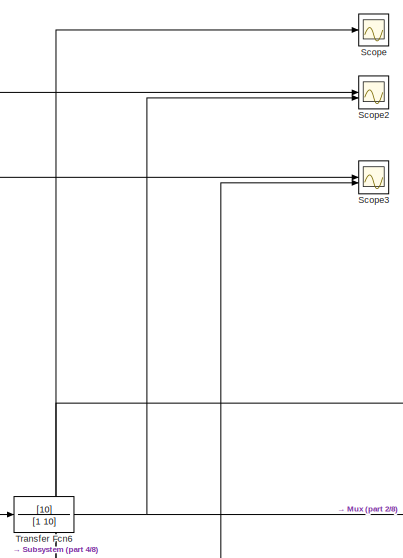
[diagram: root canvas - part 1/8, top right region]
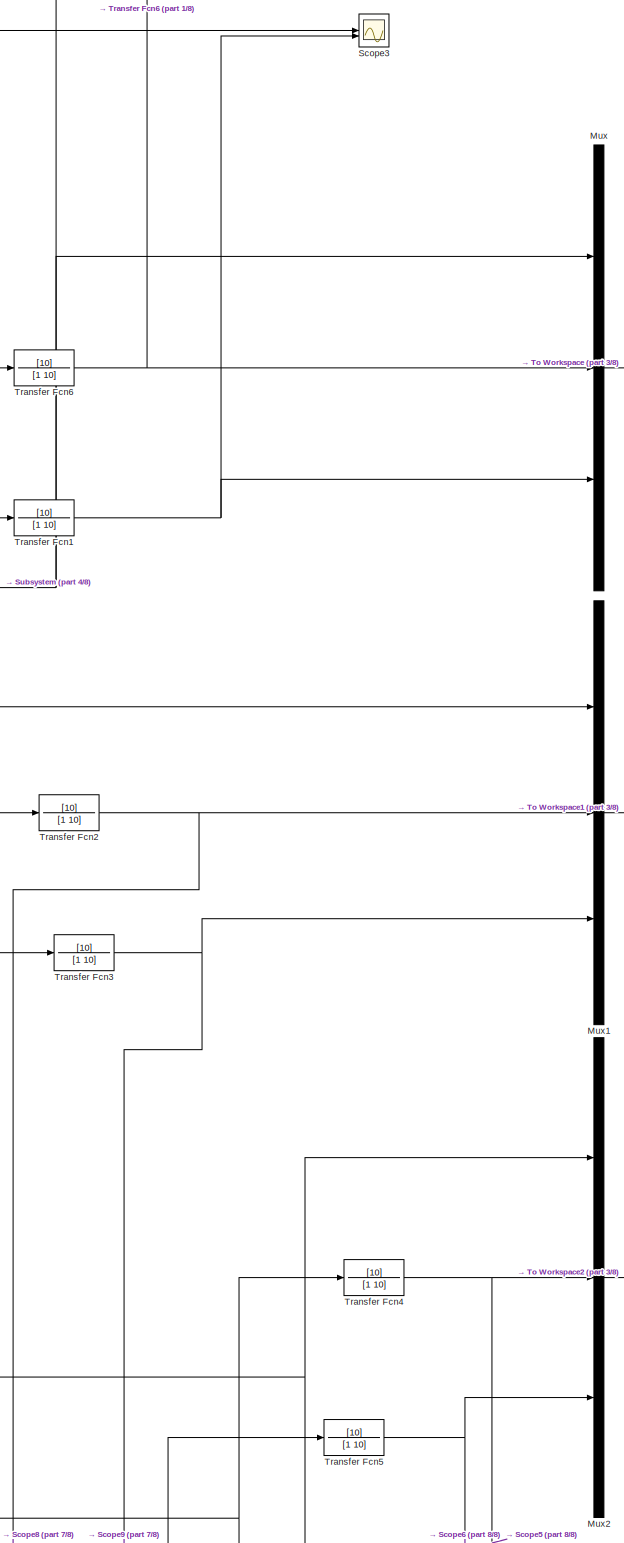
[diagram: root canvas - part 2/8, middle right region]
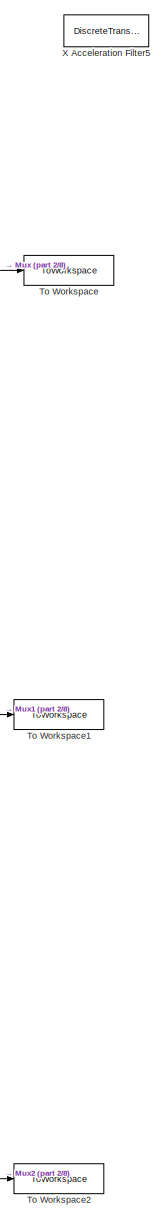
[diagram: root canvas - part 3/8, middle right region]
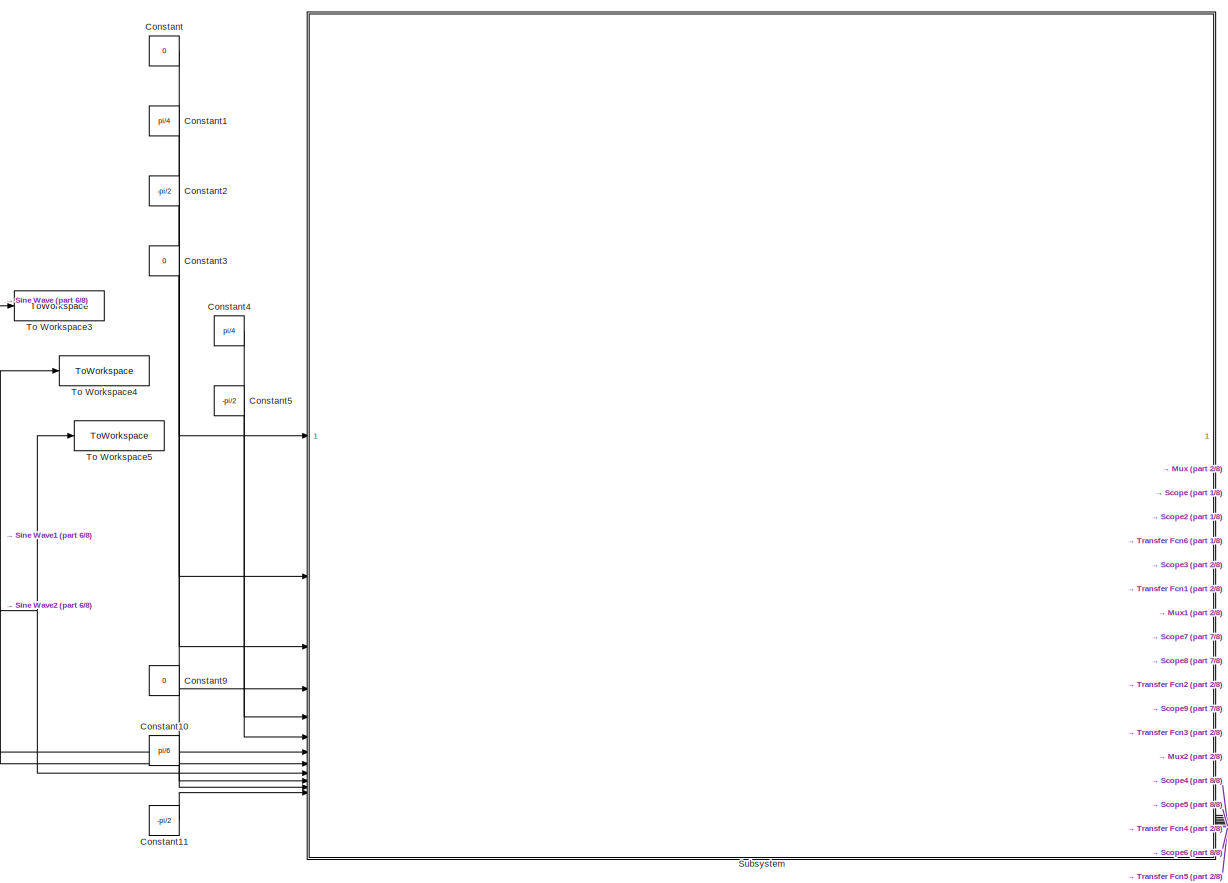
[diagram: root canvas - part 4/8, central region]
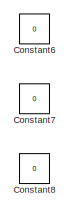
[diagram: root canvas - part 5/8, middle left region]
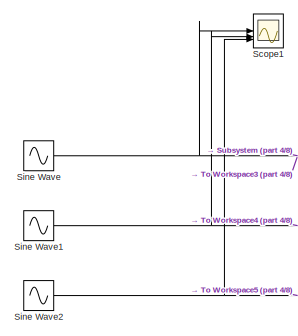
[diagram: root canvas - part 6/8, middle left region]
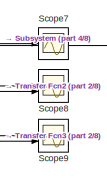
[diagram: root canvas - part 7/8, bottom right region]
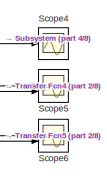
[diagram: root canvas - part 8/8, bottom right region]
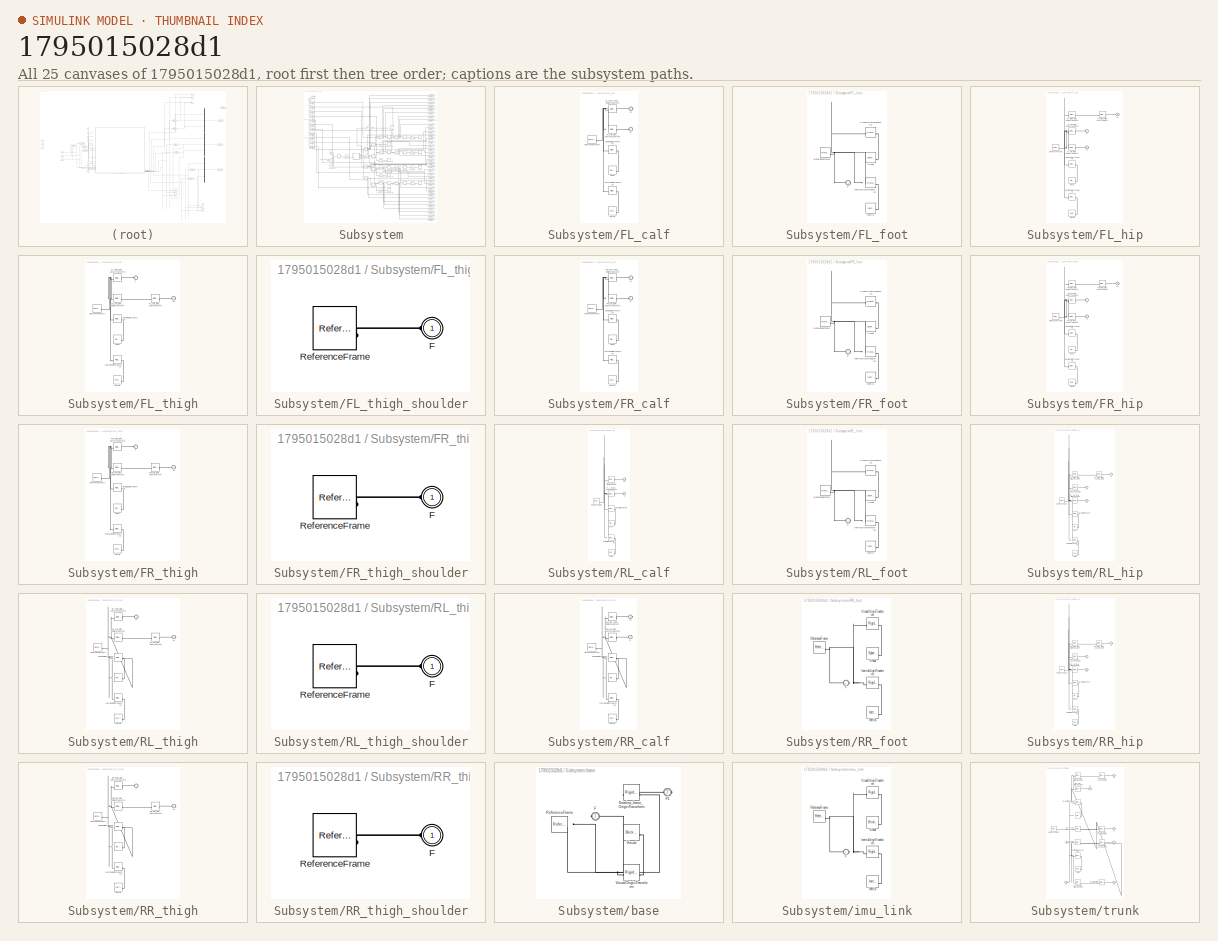
[diagram: thumbnail index - all 25 canvases of the model, root first then tree order]
MODEL slx_1795015028d1
KIND model
CONFIG AbsTol = auto
CONFIG EnableMultiTasking = off
CONFIG FixedStep = 0.01
CONFIG MaxStep = auto
CONFIG MinStep = auto
CONFIG RelTol = 1e-3
CONFIG SampleTimeConstraint = Unconstrained
CONFIG SolverName = VariableStepAuto
CONFIG StartTime = 0.0
CONFIG StopTime = 30
BLOCK [Constant] Constant
  Value = 0
BLOCK [Constant] Constant1
  Value = pi/4
BLOCK [Constant] Constant10
  Value = pi/6
BLOCK [Constant] Constant11
  Value = -pi/2
BLOCK [Constant] Constant2
  Value = -pi/2
BLOCK [Constant] Constant3
  Value = 0
BLOCK [Constant] Constant4
  Value = pi/4
BLOCK [Constant] Constant5
  Value = -pi/2
BLOCK [Constant] Constant6
  Value = 0
BLOCK [Constant] Constant7
  Value = 0
BLOCK [Constant] Constant8
  Value = 0
BLOCK [Constant] Constant9
  Value = 0
BLOCK [Mux] Mux
  DisplayOption = bar
  Inputs = 3
BLOCK [Mux] Mux1
  DisplayOption = bar
  Inputs = 3
BLOCK [Mux] Mux2
  DisplayOption = bar
  Inputs = 3
BLOCK [Scope] Scope
  Floating = off
  NumInputPorts = 1
  ScopeSpecificationString = Simulink.scopes.TimeScopeBlockCfg('CurrentConfiguration', extmgr.ConfigurationSet(extmgr.Configuration('Core','General UI',true),extmgr.Configuration('Core','Source UI',true),extmgr.Configuration('Sources','WiredSimulink',true,'DataLoggingVariableName','ScopeData1'),extmgr.Configuration('Visuals','Time Domain',true,'SerializedDisplays',{struct('MinYLimReal','-0.40267','MaxYLimReal','0.9383','YLabe...<+1397ch>
BLOCK [Scope] Scope1
  Floating = off
  NumInputPorts = 3
  ScopeSpecificationString = Simulink.scopes.TimeScopeBlockCfg('CurrentConfiguration', extmgr.ConfigurationSet(extmgr.Configuration('Core','General UI',true),extmgr.Configuration('Core','Source UI',true),extmgr.Configuration('Sources','WiredSimulink',true),extmgr.Configuration('Visuals','Time Domain',true,'SerializedDisplays',{struct('MinYLimReal','-0.875','MaxYLimReal','0.875','YLabelReal','','MinYLimMag','0.00000','MaxYLimM...<+1373ch>
BLOCK [Scope] Scope2
  Floating = off
  NumInputPorts = 2
  ScopeSpecificationString = Simulink.scopes.TimeScopeBlockCfg('CurrentConfiguration', extmgr.ConfigurationSet(extmgr.Configuration('Core','General UI',true),extmgr.Configuration('Core','Source UI',true),extmgr.Configuration('Sources','WiredSimulink',true,'DataLoggingVariableName','ScopeData2'),extmgr.Configuration('Visuals','Time Domain',true,'SerializedDisplays',{struct('MinYLimReal','-12.49898','MaxYLimReal','21.90466','YL...<+1393ch>
BLOCK [Scope] Scope3
  Floating = off
  NumInputPorts = 2
  ScopeSpecificationString = Simulink.scopes.TimeScopeBlockCfg('CurrentConfiguration', extmgr.ConfigurationSet(extmgr.Configuration('Core','General UI',true),extmgr.Configuration('Core','Source UI',true),extmgr.Configuration('Sources','WiredSimulink',true,'DataLoggingVariableName','ScopeData3'),extmgr.Configuration('Visuals','Time Domain',true,'SerializedDisplays',{struct('MinYLimReal','-3.04077','MaxYLimReal','0.33786','YLab...<+1398ch>
BLOCK [Scope] Scope4
  Floating = off
  NumInputPorts = 1
  ScopeSpecificationString = Simulink.scopes.TimeScopeBlockCfg('CurrentConfiguration', extmgr.ConfigurationSet(extmgr.Configuration('Core','General UI',true),extmgr.Configuration('Core','Source UI',true),extmgr.Configuration('Sources','WiredSimulink',true,'DataLoggingVariableName','ScopeData1'),extmgr.Configuration('Visuals','Time Domain',true,'SerializedDisplays',{struct('MinYLimReal','-3.15993','MaxYLimReal','1.46314','YLab...<+1420ch>
BLOCK [Scope] Scope5
  Floating = off
  NumInputPorts = 2
  ScopeSpecificationString = Simulink.scopes.TimeScopeBlockCfg('CurrentConfiguration', extmgr.ConfigurationSet(extmgr.Configuration('Core','General UI',true),extmgr.Configuration('Core','Source UI',true),extmgr.Configuration('Sources','WiredSimulink',true,'DataLoggingVariableName','ScopeData2'),extmgr.Configuration('Visuals','Time Domain',true,'SerializedDisplays',{struct('MinYLimReal','-28.43491','MaxYLimReal','25.10292','YL...<+1466ch>
BLOCK [Scope] Scope6
  Floating = off
  NumInputPorts = 2
  ScopeSpecificationString = Simulink.scopes.TimeScopeBlockCfg('CurrentConfiguration', extmgr.ConfigurationSet(extmgr.Configuration('Core','General UI',true),extmgr.Configuration('Core','Source UI',true),extmgr.Configuration('Sources','WiredSimulink',true,'DataLoggingVariableName','ScopeData3'),extmgr.Configuration('Visuals','Time Domain',true,'SerializedDisplays',{struct('MinYLimReal','-1285.59664','MaxYLimReal','955.05915',...<+1453ch>
BLOCK [Scope] Scope7
  Floating = off
  NumInputPorts = 1
  ScopeSpecificationString = Simulink.scopes.TimeScopeBlockCfg('CurrentConfiguration', extmgr.ConfigurationSet(extmgr.Configuration('Core','General UI',true),extmgr.Configuration('Core','Source UI',true),extmgr.Configuration('Sources','WiredSimulink',true,'DataLoggingVariableName','ScopeData4'),extmgr.Configuration('Visuals','Time Domain',true,'SerializedDisplays',{struct('MinYLimReal','-1.32','MaxYLimReal','1.3998','YLabelRe...<+1391ch>
BLOCK [Scope] Scope8
  Floating = off
  NumInputPorts = 2
  ScopeSpecificationString = Simulink.scopes.TimeScopeBlockCfg('CurrentConfiguration', extmgr.ConfigurationSet(extmgr.Configuration('Core','General UI',true),extmgr.Configuration('Core','Source UI',true),extmgr.Configuration('Sources','WiredSimulink',true,'DataLoggingVariableName','ScopeData5'),extmgr.Configuration('Visuals','Time Domain',true,'SerializedDisplays',{struct('MinYLimReal','-16.405','MaxYLimReal','14.69769','YLab...<+1415ch>
BLOCK [Scope] Scope9
  Floating = off
  NumInputPorts = 2
  ScopeSpecificationString = Simulink.scopes.TimeScopeBlockCfg('CurrentConfiguration', extmgr.ConfigurationSet(extmgr.Configuration('Core','General UI',true),extmgr.Configuration('Core','Source UI',true),extmgr.Configuration('Sources','WiredSimulink',true,'DataLoggingVariableName','ScopeData6'),extmgr.Configuration('Visuals','Time Domain',true,'SerializedDisplays',{struct('MinYLimReal','-1016.51151','MaxYLimReal','157.75028',...<+1418ch>
BLOCK [Sin] Sine Wave
  Amplitude = -0.7
  Frequency = 6.25
  SampleTime = 0.01
BLOCK [Sin] Sine Wave1
  Amplitude = 0.6
  Frequency = 6.25
  SampleTime = 0.01
BLOCK [Sin] Sine Wave2
  Amplitude = -0.3
  Frequency = 6.25
  Phase = pi
  SampleTime = 0.01
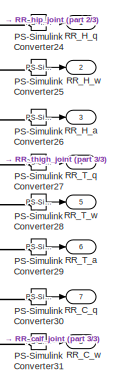
[diagram: Subsystem - part 1/3, top right region]
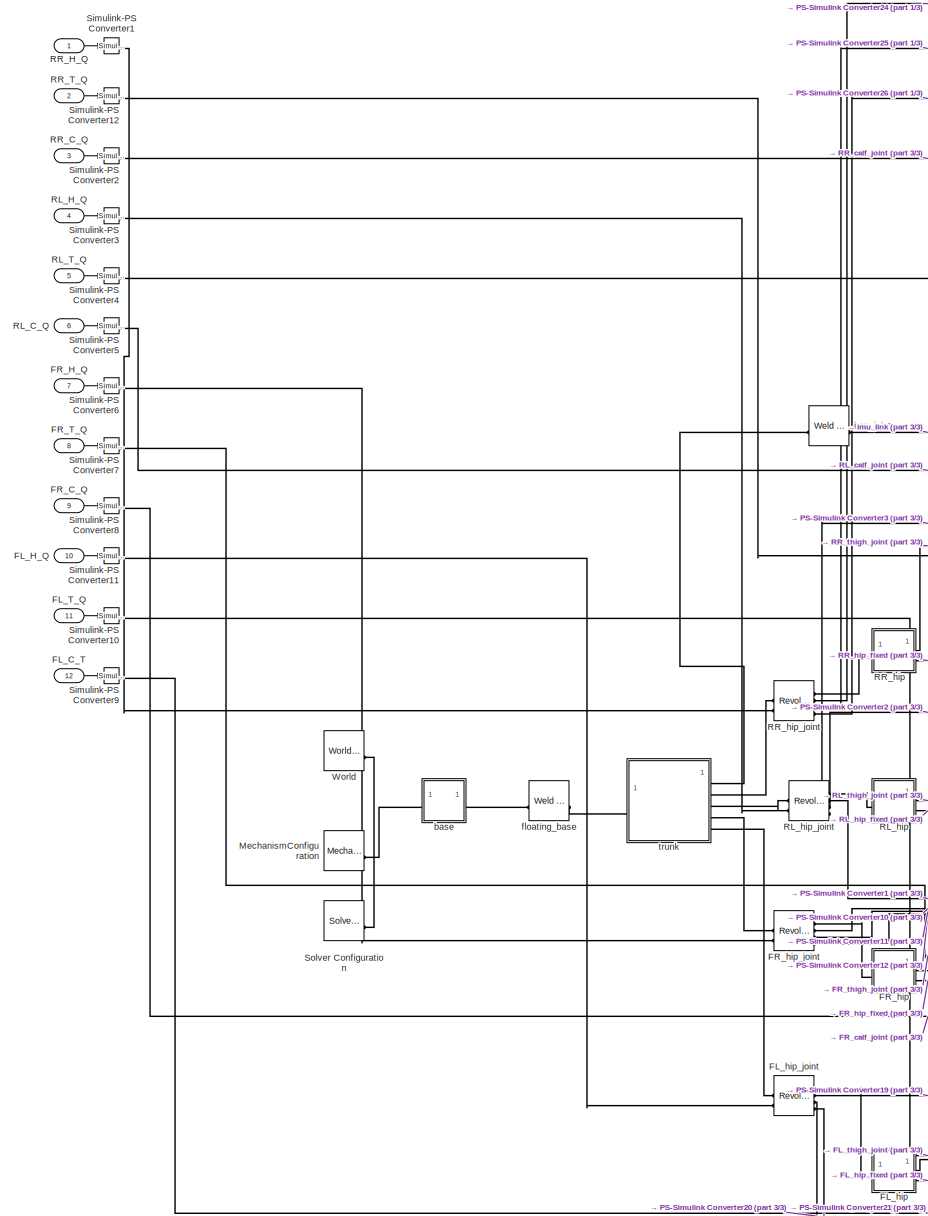
[diagram: Subsystem - part 2/3, middle left region]
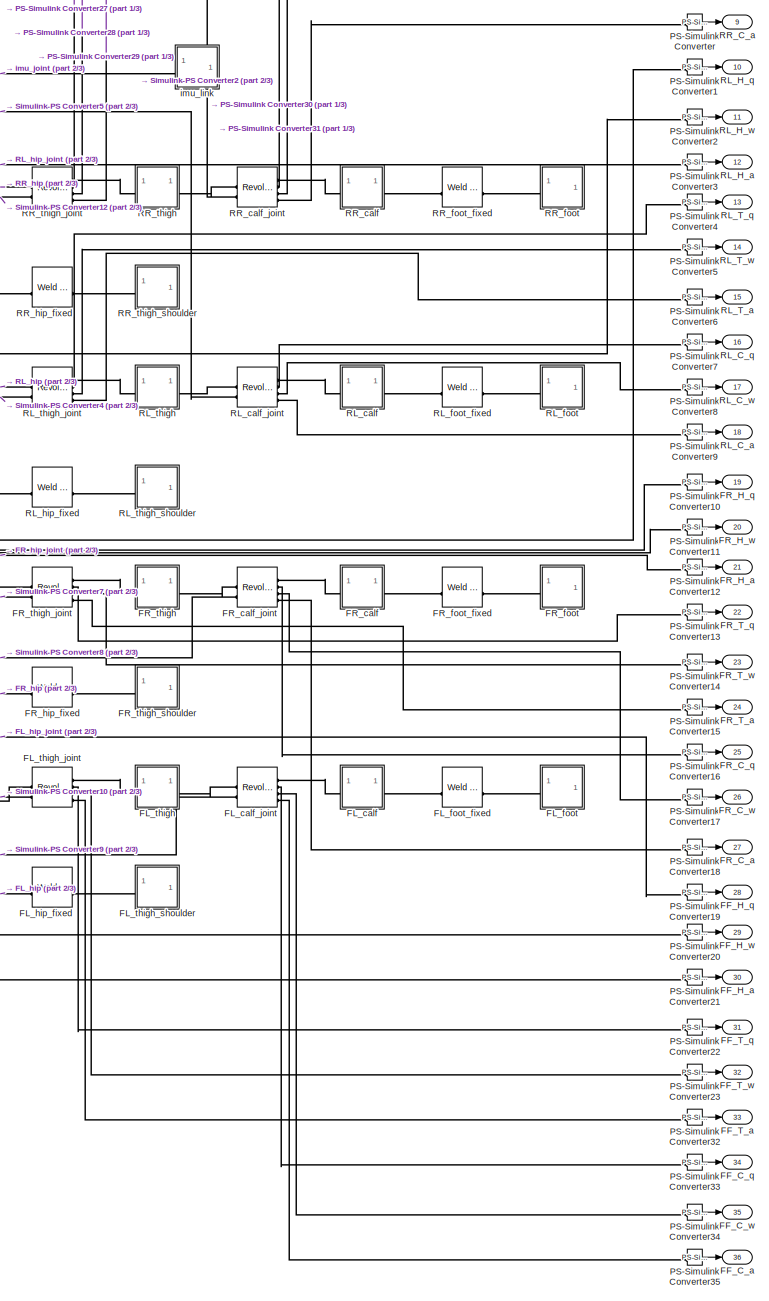
[diagram: Subsystem - part 3/3, right side, full height]
BLOCK [SubSystem] Subsystem
BLOCK [Outport] Subsystem/FF_C_a
  Port = 36
BLOCK [Outport] Subsystem/FF_C_q
  Port = 34
BLOCK [Outport] Subsystem/FF_C_w
  Port = 35
BLOCK [Outport] Subsystem/FF_H_a
  Port = 30
BLOCK [Outport] Subsystem/FF_H_q
  Port = 28
BLOCK [Outport] Subsystem/FF_H_w
  Port = 29
BLOCK [Outport] Subsystem/FF_T_a
  Port = 33
BLOCK [Outport] Subsystem/FF_T_q
  Port = 31
BLOCK [Outport] Subsystem/FF_T_w
  Port = 32
BLOCK [Inport] Subsystem/FL_C_T
  Port = 12
BLOCK [Inport] Subsystem/FL_H_Q
  Port = 10
BLOCK [Inport] Subsystem/FL_T_Q
  Port = 11
BLOCK [SubSystem] Subsystem/FL_calf
BLOCK [PMIOPort] Subsystem/FL_calf/F
  Side = Left
BLOCK [PMIOPort] Subsystem/FL_calf/F1
  Port = 2
  Side = Right
BLOCK [Reference] Subsystem/FL_calf/FL_calf_joint_AxisInvTransform  REF=sm_lib/Frames and
Transforms/Rigid
Transform
  SourceBlock = sm_lib/Frames and\nTransforms/Rigid\nTransform
  SourceType = Rigid\nTransform
BLOCK [Reference] Subsystem/FL_calf/FL_foot_fixed_OriginTransform  REF=sm_lib/Frames and
Transforms/Rigid
Transform
  SourceBlock = sm_lib/Frames and\nTransforms/Rigid\nTransform
  SourceType = Rigid\nTransform
BLOCK [Reference] Subsystem/FL_calf/Inertia  REF=sm_lib/Body Elements/Inertia
  SourceBlock = sm_lib/Body Elements/Inertia
  SourceType = Inertia
BLOCK [Reference] Subsystem/FL_calf/InertiaOriginTransform  REF=sm_lib/Frames and
Transforms/Rigid
Transform
  SourceBlock = sm_lib/Frames and\nTransforms/Rigid\nTransform
  SourceType = Rigid\nTransform
BLOCK [Reference] Subsystem/FL_calf/ReferenceFrame  REF=sm_lib/Frames and
Transforms/Reference
Frame
  SourceBlock = sm_lib/Frames and\nTransforms/Reference\nFrame
  SourceType = Reference\nFrame
BLOCK [Reference] Subsystem/FL_calf/Visual  REF=sm_lib/Body Elements/File Solid
  SourceBlock = sm_lib/Body Elements/File Solid
  SourceType = File Solid
BLOCK [Reference] Subsystem/FL_calf/VisualOriginTransform  REF=sm_lib/Frames and
Transforms/Rigid
Transform
  SourceBlock = sm_lib/Frames and\nTransforms/Rigid\nTransform
  SourceType = Rigid\nTransform
BLOCK [Reference] Subsystem/FL_calf_joint  REF=sm_lib/Joints/Revolute Joint
  SourceBlock = sm_lib/Joints/Revolute Joint
  SourceType = Revolute Joint
BLOCK [SubSystem] Subsystem/FL_foot
BLOCK [PMIOPort] Subsystem/FL_foot/F
  Side = Left
BLOCK [Reference] Subsystem/FL_foot/Inertia  REF=sm_lib/Body Elements/Inertia
  SourceBlock = sm_lib/Body Elements/Inertia
  SourceType = Inertia
BLOCK [Reference] Subsystem/FL_foot/InertiaOriginTransform  REF=sm_lib/Frames and
Transforms/Rigid
Transform
  SourceBlock = sm_lib/Frames and\nTransforms/Rigid\nTransform
  SourceType = Rigid\nTransform
BLOCK [Reference] Subsystem/FL_foot/ReferenceFrame  REF=sm_lib/Frames and
Transforms/Reference
Frame
  SourceBlock = sm_lib/Frames and\nTransforms/Reference\nFrame
  SourceType = Reference\nFrame
BLOCK [Reference] Subsystem/FL_foot/Visual  REF=sm_lib/Body Elements/Spherical Solid
  SourceBlock = sm_lib/Body Elements/Spherical Solid
  SourceType = Spherical Solid
BLOCK [Reference] Subsystem/FL_foot/VisualOriginTransform  REF=sm_lib/Frames and
Transforms/Rigid
Transform
  SourceBlock = sm_lib/Frames and\nTransforms/Rigid\nTransform
  SourceType = Rigid\nTransform
BLOCK [Reference] Subsystem/FL_foot_fixed  REF=sm_lib/Joints/Weld Joint
  SourceBlock = sm_lib/Joints/Weld Joint
  SourceType = Weld Joint
BLOCK [SubSystem] Subsystem/FL_hip
BLOCK [PMIOPort] Subsystem/FL_hip/F
  Side = Left
BLOCK [PMIOPort] Subsystem/FL_hip/F1
  Port = 3
  Side = Right
BLOCK [PMIOPort] Subsystem/FL_hip/F2
  Port = 2
  Side = Right
BLOCK [Reference] Subsystem/FL_hip/FL_hip_fixed_OriginTransform  REF=sm_lib/Frames and
Transforms/Rigid
Transform
  SourceBlock = sm_lib/Frames and\nTransforms/Rigid\nTransform
  SourceType = Rigid\nTransform
BLOCK [Reference] Subsystem/FL_hip/FL_hip_joint_AxisInvTransform  REF=sm_lib/Frames and
Transforms/Rigid
Transform
  SourceBlock = sm_lib/Frames and\nTransforms/Rigid\nTransform
  SourceType = Rigid\nTransform
BLOCK [Reference] Subsystem/FL_hip/FL_thigh_joint_AxisTransform  REF=sm_lib/Frames and
Transforms/Rigid
Transform
  SourceBlock = sm_lib/Frames and\nTransforms/Rigid\nTransform
  SourceType = Rigid\nTransform
BLOCK [Reference] Subsystem/FL_hip/FL_thigh_joint_OriginTransform  REF=sm_lib/Frames and
Transforms/Rigid
Transform
  SourceBlock = sm_lib/Frames and\nTransforms/Rigid\nTransform
  SourceType = Rigid\nTransform
BLOCK [Reference] Subsystem/FL_hip/Inertia  REF=sm_lib/Body Elements/Inertia
  SourceBlock = sm_lib/Body Elements/Inertia
  SourceType = Inertia
BLOCK [Reference] Subsystem/FL_hip/InertiaOriginTransform  REF=sm_lib/Frames and
Transforms/Rigid
Transform
  SourceBlock = sm_lib/Frames and\nTransforms/Rigid\nTransform
  SourceType = Rigid\nTransform
BLOCK [Reference] Subsystem/FL_hip/ReferenceFrame  REF=sm_lib/Frames and
Transforms/Reference
Frame
  SourceBlock = sm_lib/Frames and\nTransforms/Reference\nFrame
  SourceType = Reference\nFrame
BLOCK [Reference] Subsystem/FL_hip/Visual  REF=sm_lib/Body Elements/File Solid
  SourceBlock = sm_lib/Body Elements/File Solid
  SourceType = File Solid
BLOCK [Reference] Subsystem/FL_hip/VisualOriginTransform  REF=sm_lib/Frames and
Transforms/Rigid
Transform
  SourceBlock = sm_lib/Frames and\nTransforms/Rigid\nTransform
  SourceType = Rigid\nTransform
BLOCK [Reference] Subsystem/FL_hip_fixed  REF=sm_lib/Joints/Weld Joint
  SourceBlock = sm_lib/Joints/Weld Joint
  SourceType = Weld Joint
BLOCK [Reference] Subsystem/FL_hip_joint  REF=sm_lib/Joints/Revolute Joint
  SourceBlock = sm_lib/Joints/Revolute Joint
  SourceType = Revolute Joint
BLOCK [SubSystem] Subsystem/FL_thigh
BLOCK [PMIOPort] Subsystem/FL_thigh/F
  Side = Left
BLOCK [PMIOPort] Subsystem/FL_thigh/F1
  Port = 2
  Side = Right
BLOCK [Reference] Subsystem/FL_thigh/FL_calf_joint_AxisTransform  REF=sm_lib/Frames and
Transforms/Rigid
Transform
  SourceBlock = sm_lib/Frames and\nTransforms/Rigid\nTransform
  SourceType = Rigid\nTransform
BLOCK [Reference] Subsystem/FL_thigh/FL_calf_joint_OriginTransform  REF=sm_lib/Frames and
Transforms/Rigid
Transform
  SourceBlock = sm_lib/Frames and\nTransforms/Rigid\nTransform
  SourceType = Rigid\nTransform
BLOCK [Reference] Subsystem/FL_thigh/FL_thigh_joint_AxisInvTransform  REF=sm_lib/Frames and
Transforms/Rigid
Transform
  SourceBlock = sm_lib/Frames and\nTransforms/Rigid\nTransform
  SourceType = Rigid\nTransform
BLOCK [Reference] Subsystem/FL_thigh/Inertia  REF=sm_lib/Body Elements/Inertia
  SourceBlock = sm_lib/Body Elements/Inertia
  SourceType = Inertia
BLOCK [Reference] Subsystem/FL_thigh/InertiaOriginTransform  REF=sm_lib/Frames and
Transforms/Rigid
Transform
  SourceBlock = sm_lib/Frames and\nTransforms/Rigid\nTransform
  SourceType = Rigid\nTransform
BLOCK [Reference] Subsystem/FL_thigh/ReferenceFrame  REF=sm_lib/Frames and
Transforms/Reference
Frame
  SourceBlock = sm_lib/Frames and\nTransforms/Reference\nFrame
  SourceType = Reference\nFrame
BLOCK [Reference] Subsystem/FL_thigh/Visual  REF=sm_lib/Body Elements/File Solid
  SourceBlock = sm_lib/Body Elements/File Solid
  SourceType = File Solid
BLOCK [Reference] Subsystem/FL_thigh/VisualOriginTransform  REF=sm_lib/Frames and
Transforms/Rigid
Transform
  SourceBlock = sm_lib/Frames and\nTransforms/Rigid\nTransform
  SourceType = Rigid\nTransform
BLOCK [Reference] Subsystem/FL_thigh_joint  REF=sm_lib/Joints/Revolute Joint
  SourceBlock = sm_lib/Joints/Revolute Joint
  SourceType = Revolute Joint
BLOCK [SubSystem] Subsystem/FL_thigh_shoulder
BLOCK [PMIOPort] Subsystem/FL_thigh_shoulder/F
  Side = Left
BLOCK [Reference] Subsystem/FL_thigh_shoulder/ReferenceFrame  REF=sm_lib/Frames and
Transforms/Reference
Frame
  SourceBlock = sm_lib/Frames and\nTransforms/Reference\nFrame
  SourceType = Reference\nFrame
BLOCK [Inport] Subsystem/FR_C_Q
  Port = 9
BLOCK [Outport] Subsystem/FR_C_a
  Port = 27
BLOCK [Outport] Subsystem/FR_C_q
  Port = 25
BLOCK [Outport] Subsystem/FR_C_w
  Port = 26
BLOCK [Inport] Subsystem/FR_H_Q
  Port = 7
BLOCK [Outport] Subsystem/FR_H_a
  Port = 21
BLOCK [Outport] Subsystem/FR_H_q
  Port = 19
BLOCK [Outport] Subsystem/FR_H_w
  Port = 20
BLOCK [Inport] Subsystem/FR_T_Q
  Port = 8
BLOCK [Outport] Subsystem/FR_T_a
  Port = 24
BLOCK [Outport] Subsystem/FR_T_q
  Port = 22
BLOCK [Outport] Subsystem/FR_T_w
  Port = 23
BLOCK [SubSystem] Subsystem/FR_calf
BLOCK [PMIOPort] Subsystem/FR_calf/F
  Side = Left
BLOCK [PMIOPort] Subsystem/FR_calf/F1
  Port = 2
  Side = Right
BLOCK [Reference] Subsystem/FR_calf/FR_calf_joint_AxisInvTransform  REF=sm_lib/Frames and
Transforms/Rigid
Transform
  SourceBlock = sm_lib/Frames and\nTransforms/Rigid\nTransform
  SourceType = Rigid\nTransform
BLOCK [Reference] Subsystem/FR_calf/FR_foot_fixed_OriginTransform  REF=sm_lib/Frames and
Transforms/Rigid
Transform
  SourceBlock = sm_lib/Frames and\nTransforms/Rigid\nTransform
  SourceType = Rigid\nTransform
BLOCK [Reference] Subsystem/FR_calf/Inertia  REF=sm_lib/Body Elements/Inertia
  SourceBlock = sm_lib/Body Elements/Inertia
  SourceType = Inertia
BLOCK [Reference] Subsystem/FR_calf/InertiaOriginTransform  REF=sm_lib/Frames and
Transforms/Rigid
Transform
  SourceBlock = sm_lib/Frames and\nTransforms/Rigid\nTransform
  SourceType = Rigid\nTransform
BLOCK [Reference] Subsystem/FR_calf/ReferenceFrame  REF=sm_lib/Frames and
Transforms/Reference
Frame
  SourceBlock = sm_lib/Frames and\nTransforms/Reference\nFrame
  SourceType = Reference\nFrame
BLOCK [Reference] Subsystem/FR_calf/Visual  REF=sm_lib/Body Elements/File Solid
  SourceBlock = sm_lib/Body Elements/File Solid
  SourceType = File Solid
BLOCK [Reference] Subsystem/FR_calf/VisualOriginTransform  REF=sm_lib/Frames and
Transforms/Rigid
Transform
  SourceBlock = sm_lib/Frames and\nTransforms/Rigid\nTransform
  SourceType = Rigid\nTransform
BLOCK [Reference] Subsystem/FR_calf_joint  REF=sm_lib/Joints/Revolute Joint
  SourceBlock = sm_lib/Joints/Revolute Joint
  SourceType = Revolute Joint
BLOCK [SubSystem] Subsystem/FR_foot
BLOCK [PMIOPort] Subsystem/FR_foot/F
  Side = Left
BLOCK [Reference] Subsystem/FR_foot/Inertia  REF=sm_lib/Body Elements/Inertia
  SourceBlock = sm_lib/Body Elements/Inertia
  SourceType = Inertia
BLOCK [Reference] Subsystem/FR_foot/InertiaOriginTransform  REF=sm_lib/Frames and
Transforms/Rigid
Transform
  SourceBlock = sm_lib/Frames and\nTransforms/Rigid\nTransform
  SourceType = Rigid\nTransform
BLOCK [Reference] Subsystem/FR_foot/ReferenceFrame  REF=sm_lib/Frames and
Transforms/Reference
Frame
  SourceBlock = sm_lib/Frames and\nTransforms/Reference\nFrame
  SourceType = Reference\nFrame
BLOCK [Reference] Subsystem/FR_foot/Visual  REF=sm_lib/Body Elements/Spherical Solid
  SourceBlock = sm_lib/Body Elements/Spherical Solid
  SourceType = Spherical Solid
BLOCK [Reference] Subsystem/FR_foot/VisualOriginTransform  REF=sm_lib/Frames and
Transforms/Rigid
Transform
  SourceBlock = sm_lib/Frames and\nTransforms/Rigid\nTransform
  SourceType = Rigid\nTransform
BLOCK [Reference] Subsystem/FR_foot_fixed  REF=sm_lib/Joints/Weld Joint
  SourceBlock = sm_lib/Joints/Weld Joint
  SourceType = Weld Joint
BLOCK [SubSystem] Subsystem/FR_hip
BLOCK [PMIOPort] Subsystem/FR_hip/F
  Side = Left
BLOCK [PMIOPort] Subsystem/FR_hip/F1
  Port = 3
  Side = Right
BLOCK [PMIOPort] Subsystem/FR_hip/F2
  Port = 2
  Side = Right
BLOCK [Reference] Subsystem/FR_hip/FR_hip_fixed_OriginTransform  REF=sm_lib/Frames and
Transforms/Rigid
Transform
  SourceBlock = sm_lib/Frames and\nTransforms/Rigid\nTransform
  SourceType = Rigid\nTransform
BLOCK [Reference] Subsystem/FR_hip/FR_hip_joint_AxisInvTransform  REF=sm_lib/Frames and
Transforms/Rigid
Transform
  SourceBlock = sm_lib/Frames and\nTransforms/Rigid\nTransform
  SourceType = Rigid\nTransform
BLOCK [Reference] Subsystem/FR_hip/FR_thigh_joint_AxisTransform  REF=sm_lib/Frames and
Transforms/Rigid
Transform
  SourceBlock = sm_lib/Frames and\nTransforms/Rigid\nTransform
  SourceType = Rigid\nTransform
BLOCK [Reference] Subsystem/FR_hip/FR_thigh_joint_OriginTransform  REF=sm_lib/Frames and
Transforms/Rigid
Transform
  SourceBlock = sm_lib/Frames and\nTransforms/Rigid\nTransform
  SourceType = Rigid\nTransform
BLOCK [Reference] Subsystem/FR_hip/Inertia  REF=sm_lib/Body Elements/Inertia
  SourceBlock = sm_lib/Body Elements/Inertia
  SourceType = Inertia
BLOCK [Reference] Subsystem/FR_hip/InertiaOriginTransform  REF=sm_lib/Frames and
Transforms/Rigid
Transform
  SourceBlock = sm_lib/Frames and\nTransforms/Rigid\nTransform
  SourceType = Rigid\nTransform
BLOCK [Reference] Subsystem/FR_hip/ReferenceFrame  REF=sm_lib/Frames and
Transforms/Reference
Frame
  SourceBlock = sm_lib/Frames and\nTransforms/Reference\nFrame
  SourceType = Reference\nFrame
BLOCK [Reference] Subsystem/FR_hip/Visual  REF=sm_lib/Body Elements/File Solid
  SourceBlock = sm_lib/Body Elements/File Solid
  SourceType = File Solid
BLOCK [Reference] Subsystem/FR_hip/VisualOriginTransform  REF=sm_lib/Frames and
Transforms/Rigid
Transform
  SourceBlock = sm_lib/Frames and\nTransforms/Rigid\nTransform
  SourceType = Rigid\nTransform
BLOCK [Reference] Subsystem/FR_hip_fixed  REF=sm_lib/Joints/Weld Joint
  SourceBlock = sm_lib/Joints/Weld Joint
  SourceType = Weld Joint
BLOCK [Reference] Subsystem/FR_hip_joint  REF=sm_lib/Joints/Revolute Joint
  SourceBlock = sm_lib/Joints/Revolute Joint
  SourceType = Revolute Joint
BLOCK [SubSystem] Subsystem/FR_thigh
BLOCK [PMIOPort] Subsystem/FR_thigh/F
  Side = Left
BLOCK [PMIOPort] Subsystem/FR_thigh/F1
  Port = 2
  Side = Right
BLOCK [Reference] Subsystem/FR_thigh/FR_calf_joint_AxisTransform  REF=sm_lib/Frames and
Transforms/Rigid
Transform
  SourceBlock = sm_lib/Frames and\nTransforms/Rigid\nTransform
  SourceType = Rigid\nTransform
BLOCK [Reference] Subsystem/FR_thigh/FR_calf_joint_OriginTransform  REF=sm_lib/Frames and
Transforms/Rigid
Transform
  SourceBlock = sm_lib/Frames and\nTransforms/Rigid\nTransform
  SourceType = Rigid\nTransform
BLOCK [Reference] Subsystem/FR_thigh/FR_thigh_joint_AxisInvTransform  REF=sm_lib/Frames and
Transforms/Rigid
Transform
  SourceBlock = sm_lib/Frames and\nTransforms/Rigid\nTransform
  SourceType = Rigid\nTransform
BLOCK [Reference] Subsystem/FR_thigh/Inertia  REF=sm_lib/Body Elements/Inertia
  SourceBlock = sm_lib/Body Elements/Inertia
  SourceType = Inertia
BLOCK [Reference] Subsystem/FR_thigh/InertiaOriginTransform  REF=sm_lib/Frames and
Transforms/Rigid
Transform
  SourceBlock = sm_lib/Frames and\nTransforms/Rigid\nTransform
  SourceType = Rigid\nTransform
BLOCK [Reference] Subsystem/FR_thigh/ReferenceFrame  REF=sm_lib/Frames and
Transforms/Reference
Frame
  SourceBlock = sm_lib/Frames and\nTransforms/Reference\nFrame
  SourceType = Reference\nFrame
BLOCK [Reference] Subsystem/FR_thigh/Visual  REF=sm_lib/Body Elements/File Solid
  SourceBlock = sm_lib/Body Elements/File Solid
  SourceType = File Solid
BLOCK [Reference] Subsystem/FR_thigh/VisualOriginTransform  REF=sm_lib/Frames and
Transforms/Rigid
Transform
  SourceBlock = sm_lib/Frames and\nTransforms/Rigid\nTransform
  SourceType = Rigid\nTransform
BLOCK [Reference] Subsystem/FR_thigh_joint  REF=sm_lib/Joints/Revolute Joint
  SourceBlock = sm_lib/Joints/Revolute Joint
  SourceType = Revolute Joint
BLOCK [SubSystem] Subsystem/FR_thigh_shoulder
BLOCK [PMIOPort] Subsystem/FR_thigh_shoulder/F
  Side = Left
BLOCK [Reference] Subsystem/FR_thigh_shoulder/ReferenceFrame  REF=sm_lib/Frames and
Transforms/Reference
Frame
  SourceBlock = sm_lib/Frames and\nTransforms/Reference\nFrame
  SourceType = Reference\nFrame
BLOCK [Reference] Subsystem/MechanismConfiguration  REF=sm_lib/Utilities/Mechanism
Configuration
  SourceBlock = sm_lib/Utilities/Mechanism\nConfiguration
  SourceType = Mechanism\nConfiguration
BLOCK [Reference] Subsystem/PS-Simulink Converter  REF=nesl_utility/PS-Simulink
Converter
  SourceBlock = nesl_utility/PS-Simulink\nConverter
  SourceType = PS-Simulink\nConverter
BLOCK [Reference] Subsystem/PS-Simulink Converter1  REF=nesl_utility/PS-Simulink
Converter
  SourceBlock = nesl_utility/PS-Simulink\nConverter
  SourceType = PS-Simulink\nConverter
BLOCK [Reference] Subsystem/PS-Simulink Converter10  REF=nesl_utility/PS-Simulink
Converter
  SourceBlock = nesl_utility/PS-Simulink\nConverter
  SourceType = PS-Simulink\nConverter
BLOCK [Reference] Subsystem/PS-Simulink Converter11  REF=nesl_utility/PS-Simulink
Converter
  SourceBlock = nesl_utility/PS-Simulink\nConverter
  SourceType = PS-Simulink\nConverter
BLOCK [Reference] Subsystem/PS-Simulink Converter12  REF=nesl_utility/PS-Simulink
Converter
  SourceBlock = nesl_utility/PS-Simulink\nConverter
  SourceType = PS-Simulink\nConverter
BLOCK [Reference] Subsystem/PS-Simulink Converter13  REF=nesl_utility/PS-Simulink
Converter
  SourceBlock = nesl_utility/PS-Simulink\nConverter
  SourceType = PS-Simulink\nConverter
BLOCK [Reference] Subsystem/PS-Simulink Converter14  REF=nesl_utility/PS-Simulink
Converter
  SourceBlock = nesl_utility/PS-Simulink\nConverter
  SourceType = PS-Simulink\nConverter
BLOCK [Reference] Subsystem/PS-Simulink Converter15  REF=nesl_utility/PS-Simulink
Converter
  SourceBlock = nesl_utility/PS-Simulink\nConverter
  SourceType = PS-Simulink\nConverter
BLOCK [Reference] Subsystem/PS-Simulink Converter16  REF=nesl_utility/PS-Simulink
Converter
  SourceBlock = nesl_utility/PS-Simulink\nConverter
  SourceType = PS-Simulink\nConverter
BLOCK [Reference] Subsystem/PS-Simulink Converter17  REF=nesl_utility/PS-Simulink
Converter
  SourceBlock = nesl_utility/PS-Simulink\nConverter
  SourceType = PS-Simulink\nConverter
BLOCK [Reference] Subsystem/PS-Simulink Converter18  REF=nesl_utility/PS-Simulink
Converter
  SourceBlock = nesl_utility/PS-Simulink\nConverter
  SourceType = PS-Simulink\nConverter
BLOCK [Reference] Subsystem/PS-Simulink Converter19  REF=nesl_utility/PS-Simulink
Converter
  SourceBlock = nesl_utility/PS-Simulink\nConverter
  SourceType = PS-Simulink\nConverter
BLOCK [Reference] Subsystem/PS-Simulink Converter2  REF=nesl_utility/PS-Simulink
Converter
  SourceBlock = nesl_utility/PS-Simulink\nConverter
  SourceType = PS-Simulink\nConverter
BLOCK [Reference] Subsystem/PS-Simulink Converter20  REF=nesl_utility/PS-Simulink
Converter
  SourceBlock = nesl_utility/PS-Simulink\nConverter
  SourceType = PS-Simulink\nConverter
BLOCK [Reference] Subsystem/PS-Simulink Converter21  REF=nesl_utility/PS-Simulink
Converter
  SourceBlock = nesl_utility/PS-Simulink\nConverter
  SourceType = PS-Simulink\nConverter
BLOCK [Reference] Subsystem/PS-Simulink Converter22  REF=nesl_utility/PS-Simulink
Converter
  SourceBlock = nesl_utility/PS-Simulink\nConverter
  SourceType = PS-Simulink\nConverter
BLOCK [Reference] Subsystem/PS-Simulink Converter23  REF=nesl_utility/PS-Simulink
Converter
  SourceBlock = nesl_utility/PS-Simulink\nConverter
  SourceType = PS-Simulink\nConverter
BLOCK [Reference] Subsystem/PS-Simulink Converter24  REF=nesl_utility/PS-Simulink
Converter
  SourceBlock = nesl_utility/PS-Simulink\nConverter
  SourceType = PS-Simulink\nConverter
BLOCK [Reference] Subsystem/PS-Simulink Converter25  REF=nesl_utility/PS-Simulink
Converter
  SourceBlock = nesl_utility/PS-Simulink\nConverter
  SourceType = PS-Simulink\nConverter
BLOCK [Reference] Subsystem/PS-Simulink Converter26  REF=nesl_utility/PS-Simulink
Converter
  SourceBlock = nesl_utility/PS-Simulink\nConverter
  SourceType = PS-Simulink\nConverter
BLOCK [Reference] Subsystem/PS-Simulink Converter27  REF=nesl_utility/PS-Simulink
Converter
  SourceBlock = nesl_utility/PS-Simulink\nConverter
  SourceType = PS-Simulink\nConverter
BLOCK [Reference] Subsystem/PS-Simulink Converter28  REF=nesl_utility/PS-Simulink
Converter
  SourceBlock = nesl_utility/PS-Simulink\nConverter
  SourceType = PS-Simulink\nConverter
BLOCK [Reference] Subsystem/PS-Simulink Converter29  REF=nesl_utility/PS-Simulink
Converter
  SourceBlock = nesl_utility/PS-Simulink\nConverter
  SourceType = PS-Simulink\nConverter
BLOCK [Reference] Subsystem/PS-Simulink Converter3  REF=nesl_utility/PS-Simulink
Converter
  SourceBlock = nesl_utility/PS-Simulink\nConverter
  SourceType = PS-Simulink\nConverter
BLOCK [Reference] Subsystem/PS-Simulink Converter30  REF=nesl_utility/PS-Simulink
Converter
  SourceBlock = nesl_utility/PS-Simulink\nConverter
  SourceType = PS-Simulink\nConverter
BLOCK [Reference] Subsystem/PS-Simulink Converter31  REF=nesl_utility/PS-Simulink
Converter
  SourceBlock = nesl_utility/PS-Simulink\nConverter
  SourceType = PS-Simulink\nConverter
BLOCK [Reference] Subsystem/PS-Simulink Converter32  REF=nesl_utility/PS-Simulink
Converter
  SourceBlock = nesl_utility/PS-Simulink\nConverter
  SourceType = PS-Simulink\nConverter
BLOCK [Reference] Subsystem/PS-Simulink Converter33  REF=nesl_utility/PS-Simulink
Converter
  SourceBlock = nesl_utility/PS-Simulink\nConverter
  SourceType = PS-Simulink\nConverter
BLOCK [Reference] Subsystem/PS-Simulink Converter34  REF=nesl_utility/PS-Simulink
Converter
  SourceBlock = nesl_utility/PS-Simulink\nConverter
  SourceType = PS-Simulink\nConverter
BLOCK [Reference] Subsystem/PS-Simulink Converter35  REF=nesl_utility/PS-Simulink
Converter
  SourceBlock = nesl_utility/PS-Simulink\nConverter
  SourceType = PS-Simulink\nConverter
BLOCK [Reference] Subsystem/PS-Simulink Converter4  REF=nesl_utility/PS-Simulink
Converter
  SourceBlock = nesl_utility/PS-Simulink\nConverter
  SourceType = PS-Simulink\nConverter
BLOCK [Reference] Subsystem/PS-Simulink Converter5  REF=nesl_utility/PS-Simulink
Converter
  SourceBlock = nesl_utility/PS-Simulink\nConverter
  SourceType = PS-Simulink\nConverter
BLOCK [Reference] Subsystem/PS-Simulink Converter6  REF=nesl_utility/PS-Simulink
Converter
  SourceBlock = nesl_utility/PS-Simulink\nConverter
  SourceType = PS-Simulink\nConverter
BLOCK [Reference] Subsystem/PS-Simulink Converter7  REF=nesl_utility/PS-Simulink
Converter
  SourceBlock = nesl_utility/PS-Simulink\nConverter
  SourceType = PS-Simulink\nConverter
BLOCK [Reference] Subsystem/PS-Simulink Converter8  REF=nesl_utility/PS-Simulink
Converter
  SourceBlock = nesl_utility/PS-Simulink\nConverter
  SourceType = PS-Simulink\nConverter
BLOCK [Reference] Subsystem/PS-Simulink Converter9  REF=nesl_utility/PS-Simulink
Converter
  SourceBlock = nesl_utility/PS-Simulink\nConverter
  SourceType = PS-Simulink\nConverter
BLOCK [Inport] Subsystem/RL_C_Q
  Port = 6
BLOCK [Outport] Subsystem/RL_C_a
  Port = 18
BLOCK [Outport] Subsystem/RL_C_q
  Port = 16
BLOCK [Outport] Subsystem/RL_C_w
  Port = 17
BLOCK [Inport] Subsystem/RL_H_Q
  Port = 4
BLOCK [Outport] Subsystem/RL_H_a
  Port = 12
BLOCK [Outport] Subsystem/RL_H_q
  Port = 10
BLOCK [Outport] Subsystem/RL_H_w
  Port = 11
BLOCK [Inport] Subsystem/RL_T_Q
  Port = 5
BLOCK [Outport] Subsystem/RL_T_a
  Port = 15
BLOCK [Outport] Subsystem/RL_T_q
  Port = 13
BLOCK [Outport] Subsystem/RL_T_w
  Port = 14
BLOCK [SubSystem] Subsystem/RL_calf
BLOCK [PMIOPort] Subsystem/RL_calf/F
  Side = Left
BLOCK [PMIOPort] Subsystem/RL_calf/F1
  Port = 2
  Side = Right
BLOCK [Reference] Subsystem/RL_calf/Inertia  REF=sm_lib/Body Elements/Inertia
  SourceBlock = sm_lib/Body Elements/Inertia
  SourceType = Inertia
BLOCK [Reference] Subsystem/RL_calf/InertiaOriginTransform  REF=sm_lib/Frames and
Transforms/Rigid
Transform
  SourceBlock = sm_lib/Frames and\nTransforms/Rigid\nTransform
  SourceType = Rigid\nTransform
BLOCK [Reference] Subsystem/RL_calf/RL_calf_joint_AxisInvTransform  REF=sm_lib/Frames and
Transforms/Rigid
Transform
  SourceBlock = sm_lib/Frames and\nTransforms/Rigid\nTransform
  SourceType = Rigid\nTransform
BLOCK [Reference] Subsystem/RL_calf/RL_foot_fixed_OriginTransform  REF=sm_lib/Frames and
Transforms/Rigid
Transform
  SourceBlock = sm_lib/Frames and\nTransforms/Rigid\nTransform
  SourceType = Rigid\nTransform
BLOCK [Reference] Subsystem/RL_calf/ReferenceFrame  REF=sm_lib/Frames and
Transforms/Reference
Frame
  SourceBlock = sm_lib/Frames and\nTransforms/Reference\nFrame
  SourceType = Reference\nFrame
BLOCK [Reference] Subsystem/RL_calf/Visual  REF=sm_lib/Body Elements/File Solid
  SourceBlock = sm_lib/Body Elements/File Solid
  SourceType = File Solid
BLOCK [Reference] Subsystem/RL_calf/VisualOriginTransform  REF=sm_lib/Frames and
Transforms/Rigid
Transform
  SourceBlock = sm_lib/Frames and\nTransforms/Rigid\nTransform
  SourceType = Rigid\nTransform
BLOCK [Reference] Subsystem/RL_calf_joint  REF=sm_lib/Joints/Revolute Joint
  SourceBlock = sm_lib/Joints/Revolute Joint
  SourceType = Revolute Joint
BLOCK [SubSystem] Subsystem/RL_foot
BLOCK [PMIOPort] Subsystem/RL_foot/F
  Side = Left
BLOCK [Reference] Subsystem/RL_foot/Inertia  REF=sm_lib/Body Elements/Inertia
  SourceBlock = sm_lib/Body Elements/Inertia
  SourceType = Inertia
BLOCK [Reference] Subsystem/RL_foot/InertiaOriginTransform  REF=sm_lib/Frames and
Transforms/Rigid
Transform
  SourceBlock = sm_lib/Frames and\nTransforms/Rigid\nTransform
  SourceType = Rigid\nTransform
BLOCK [Reference] Subsystem/RL_foot/ReferenceFrame  REF=sm_lib/Frames and
Transforms/Reference
Frame
  SourceBlock = sm_lib/Frames and\nTransforms/Reference\nFrame
  SourceType = Reference\nFrame
BLOCK [Reference] Subsystem/RL_foot/Visual  REF=sm_lib/Body Elements/Spherical Solid
  SourceBlock = sm_lib/Body Elements/Spherical Solid
  SourceType = Spherical Solid
BLOCK [Reference] Subsystem/RL_foot/VisualOriginTransform  REF=sm_lib/Frames and
Transforms/Rigid
Transform
  SourceBlock = sm_lib/Frames and\nTransforms/Rigid\nTransform
  SourceType = Rigid\nTransform
BLOCK [Reference] Subsystem/RL_foot_fixed  REF=sm_lib/Joints/Weld Joint
  SourceBlock = sm_lib/Joints/Weld Joint
  SourceType = Weld Joint
BLOCK [SubSystem] Subsystem/RL_hip
BLOCK [PMIOPort] Subsystem/RL_hip/F
  Side = Left
BLOCK [PMIOPort] Subsystem/RL_hip/F1
  Port = 3
  Side = Right
BLOCK [PMIOPort] Subsystem/RL_hip/F2
  Port = 2
  Side = Right
BLOCK [Reference] Subsystem/RL_hip/Inertia  REF=sm_lib/Body Elements/Inertia
  SourceBlock = sm_lib/Body Elements/Inertia
  SourceType = Inertia
BLOCK [Reference] Subsystem/RL_hip/InertiaOriginTransform  REF=sm_lib/Frames and
Transforms/Rigid
Transform
  SourceBlock = sm_lib/Frames and\nTransforms/Rigid\nTransform
  SourceType = Rigid\nTransform
BLOCK [Reference] Subsystem/RL_hip/RL_hip_fixed_OriginTransform  REF=sm_lib/Frames and
Transforms/Rigid
Transform
  SourceBlock = sm_lib/Frames and\nTransforms/Rigid\nTransform
  SourceType = Rigid\nTransform
BLOCK [Reference] Subsystem/RL_hip/RL_hip_joint_AxisInvTransform  REF=sm_lib/Frames and
Transforms/Rigid
Transform
  SourceBlock = sm_lib/Frames and\nTransforms/Rigid\nTransform
  SourceType = Rigid\nTransform
BLOCK [Reference] Subsystem/RL_hip/RL_thigh_joint_AxisTransform  REF=sm_lib/Frames and
Transforms/Rigid
Transform
  SourceBlock = sm_lib/Frames and\nTransforms/Rigid\nTransform
  SourceType = Rigid\nTransform
BLOCK [Reference] Subsystem/RL_hip/RL_thigh_joint_OriginTransform  REF=sm_lib/Frames and
Transforms/Rigid
Transform
  SourceBlock = sm_lib/Frames and\nTransforms/Rigid\nTransform
  SourceType = Rigid\nTransform
BLOCK [Reference] Subsystem/RL_hip/ReferenceFrame  REF=sm_lib/Frames and
Transforms/Reference
Frame
  SourceBlock = sm_lib/Frames and\nTransforms/Reference\nFrame
  SourceType = Reference\nFrame
BLOCK [Reference] Subsystem/RL_hip/Visual  REF=sm_lib/Body Elements/File Solid
  SourceBlock = sm_lib/Body Elements/File Solid
  SourceType = File Solid
BLOCK [Reference] Subsystem/RL_hip/VisualOriginTransform  REF=sm_lib/Frames and
Transforms/Rigid
Transform
  SourceBlock = sm_lib/Frames and\nTransforms/Rigid\nTransform
  SourceType = Rigid\nTransform
BLOCK [Reference] Subsystem/RL_hip_fixed  REF=sm_lib/Joints/Weld Joint
  SourceBlock = sm_lib/Joints/Weld Joint
  SourceType = Weld Joint
BLOCK [Reference] Subsystem/RL_hip_joint  REF=sm_lib/Joints/Revolute Joint
  SourceBlock = sm_lib/Joints/Revolute Joint
  SourceType = Revolute Joint
BLOCK [SubSystem] Subsystem/RL_thigh
BLOCK [PMIOPort] Subsystem/RL_thigh/F
  Side = Left
BLOCK [PMIOPort] Subsystem/RL_thigh/F1
  Port = 2
  Side = Right
BLOCK [Reference] Subsystem/RL_thigh/Inertia  REF=sm_lib/Body Elements/Inertia
  SourceBlock = sm_lib/Body Elements/Inertia
  SourceType = Inertia
BLOCK [Reference] Subsystem/RL_thigh/InertiaOriginTransform  REF=sm_lib/Frames and
Transforms/Rigid
Transform
  SourceBlock = sm_lib/Frames and\nTransforms/Rigid\nTransform
  SourceType = Rigid\nTransform
BLOCK [Reference] Subsystem/RL_thigh/RL_calf_joint_AxisTransform  REF=sm_lib/Frames and
Transforms/Rigid
Transform
  SourceBlock = sm_lib/Frames and\nTransforms/Rigid\nTransform
  SourceType = Rigid\nTransform
BLOCK [Reference] Subsystem/RL_thigh/RL_calf_joint_OriginTransform  REF=sm_lib/Frames and
Transforms/Rigid
Transform
  SourceBlock = sm_lib/Frames and\nTransforms/Rigid\nTransform
  SourceType = Rigid\nTransform
BLOCK [Reference] Subsystem/RL_thigh/RL_thigh_joint_AxisInvTransform  REF=sm_lib/Frames and
Transforms/Rigid
Transform
  SourceBlock = sm_lib/Frames and\nTransforms/Rigid\nTransform
  SourceType = Rigid\nTransform
BLOCK [Reference] Subsystem/RL_thigh/ReferenceFrame  REF=sm_lib/Frames and
Transforms/Reference
Frame
  SourceBlock = sm_lib/Frames and\nTransforms/Reference\nFrame
  SourceType = Reference\nFrame
BLOCK [Reference] Subsystem/RL_thigh/Visual  REF=sm_lib/Body Elements/File Solid
  SourceBlock = sm_lib/Body Elements/File Solid
  SourceType = File Solid
BLOCK [Reference] Subsystem/RL_thigh/VisualOriginTransform  REF=sm_lib/Frames and
Transforms/Rigid
Transform
  SourceBlock = sm_lib/Frames and\nTransforms/Rigid\nTransform
  SourceType = Rigid\nTransform
BLOCK [Reference] Subsystem/RL_thigh_joint  REF=sm_lib/Joints/Revolute Joint
  SourceBlock = sm_lib/Joints/Revolute Joint
  SourceType = Revolute Joint
BLOCK [SubSystem] Subsystem/RL_thigh_shoulder
BLOCK [PMIOPort] Subsystem/RL_thigh_shoulder/F
  Side = Left
BLOCK [Reference] Subsystem/RL_thigh_shoulder/ReferenceFrame  REF=sm_lib/Frames and
Transforms/Reference
Frame
  SourceBlock = sm_lib/Frames and\nTransforms/Reference\nFrame
  SourceType = Reference\nFrame
BLOCK [Inport] Subsystem/RR_C_Q
  Port = 3
BLOCK [Outport] Subsystem/RR_C_a
  Port = 9
BLOCK [Outport] Subsystem/RR_C_q
  Port = 7
BLOCK [Outport] Subsystem/RR_C_w
  Port = 8
BLOCK [Inport] Subsystem/RR_H_Q
BLOCK [Outport] Subsystem/RR_H_a
  Port = 3
BLOCK [Outport] Subsystem/RR_H_q
BLOCK [Outport] Subsystem/RR_H_w
  Port = 2
BLOCK [Inport] Subsystem/RR_T_Q
  Port = 2
BLOCK [Outport] Subsystem/RR_T_a
  Port = 6
BLOCK [Outport] Subsystem/RR_T_q
  Port = 4
BLOCK [Outport] Subsystem/RR_T_w
  Port = 5
BLOCK [SubSystem] Subsystem/RR_calf
BLOCK [PMIOPort] Subsystem/RR_calf/F
  Side = Left
BLOCK [PMIOPort] Subsystem/RR_calf/F1
  Port = 2
  Side = Right
BLOCK [Reference] Subsystem/RR_calf/Inertia  REF=sm_lib/Body Elements/Inertia
  SourceBlock = sm_lib/Body Elements/Inertia
  SourceType = Inertia
BLOCK [Reference] Subsystem/RR_calf/InertiaOriginTransform  REF=sm_lib/Frames and
Transforms/Rigid
Transform
  SourceBlock = sm_lib/Frames and\nTransforms/Rigid\nTransform
  SourceType = Rigid\nTransform
BLOCK [Reference] Subsystem/RR_calf/RR_calf_joint_AxisInvTransform  REF=sm_lib/Frames and
Transforms/Rigid
Transform
  SourceBlock = sm_lib/Frames and\nTransforms/Rigid\nTransform
  SourceType = Rigid\nTransform
BLOCK [Reference] Subsystem/RR_calf/RR_foot_fixed_OriginTransform  REF=sm_lib/Frames and
Transforms/Rigid
Transform
  SourceBlock = sm_lib/Frames and\nTransforms/Rigid\nTransform
  SourceType = Rigid\nTransform
BLOCK [Reference] Subsystem/RR_calf/ReferenceFrame  REF=sm_lib/Frames and
Transforms/Reference
Frame
  SourceBlock = sm_lib/Frames and\nTransforms/Reference\nFrame
  SourceType = Reference\nFrame
BLOCK [Reference] Subsystem/RR_calf/Visual  REF=sm_lib/Body Elements/File Solid
  SourceBlock = sm_lib/Body Elements/File Solid
  SourceType = File Solid
BLOCK [Reference] Subsystem/RR_calf/VisualOriginTransform  REF=sm_lib/Frames and
Transforms/Rigid
Transform
  SourceBlock = sm_lib/Frames and\nTransforms/Rigid\nTransform
  SourceType = Rigid\nTransform
BLOCK [Reference] Subsystem/RR_calf_joint  REF=sm_lib/Joints/Revolute Joint
  SourceBlock = sm_lib/Joints/Revolute Joint
  SourceType = Revolute Joint
BLOCK [SubSystem] Subsystem/RR_foot
BLOCK [PMIOPort] Subsystem/RR_foot/F
  Side = Left
BLOCK [Reference] Subsystem/RR_foot/Inertia  REF=sm_lib/Body Elements/Inertia
  SourceBlock = sm_lib/Body Elements/Inertia
  SourceType = Inertia
BLOCK [Reference] Subsystem/RR_foot/InertiaOriginTransform  REF=sm_lib/Frames and
Transforms/Rigid
Transform
  SourceBlock = sm_lib/Frames and\nTransforms/Rigid\nTransform
  SourceType = Rigid\nTransform
BLOCK [Reference] Subsystem/RR_foot/ReferenceFrame  REF=sm_lib/Frames and
Transforms/Reference
Frame
  SourceBlock = sm_lib/Frames and\nTransforms/Reference\nFrame
  SourceType = Reference\nFrame
BLOCK [Reference] Subsystem/RR_foot/Visual  REF=sm_lib/Body Elements/Spherical Solid
  SourceBlock = sm_lib/Body Elements/Spherical Solid
  SourceType = Spherical Solid
BLOCK [Reference] Subsystem/RR_foot/VisualOriginTransform  REF=sm_lib/Frames and
Transforms/Rigid
Transform
  SourceBlock = sm_lib/Frames and\nTransforms/Rigid\nTransform
  SourceType = Rigid\nTransform
BLOCK [Reference] Subsystem/RR_foot_fixed  REF=sm_lib/Joints/Weld Joint
  SourceBlock = sm_lib/Joints/Weld Joint
  SourceType = Weld Joint
BLOCK [SubSystem] Subsystem/RR_hip
BLOCK [PMIOPort] Subsystem/RR_hip/F
  Side = Left
BLOCK [PMIOPort] Subsystem/RR_hip/F1
  Port = 3
  Side = Right
BLOCK [PMIOPort] Subsystem/RR_hip/F2
  Port = 2
  Side = Right
BLOCK [Reference] Subsystem/RR_hip/Inertia  REF=sm_lib/Body Elements/Inertia
  SourceBlock = sm_lib/Body Elements/Inertia
  SourceType = Inertia
BLOCK [Reference] Subsystem/RR_hip/InertiaOriginTransform  REF=sm_lib/Frames and
Transforms/Rigid
Transform
  SourceBlock = sm_lib/Frames and\nTransforms/Rigid\nTransform
  SourceType = Rigid\nTransform
BLOCK [Reference] Subsystem/RR_hip/RR_hip_fixed_OriginTransform  REF=sm_lib/Frames and
Transforms/Rigid
Transform
  SourceBlock = sm_lib/Frames and\nTransforms/Rigid\nTransform
  SourceType = Rigid\nTransform
BLOCK [Reference] Subsystem/RR_hip/RR_hip_joint_AxisInvTransform  REF=sm_lib/Frames and
Transforms/Rigid
Transform
  SourceBlock = sm_lib/Frames and\nTransforms/Rigid\nTransform
  SourceType = Rigid\nTransform
BLOCK [Reference] Subsystem/RR_hip/RR_thigh_joint_AxisTransform  REF=sm_lib/Frames and
Transforms/Rigid
Transform
  SourceBlock = sm_lib/Frames and\nTransforms/Rigid\nTransform
  SourceType = Rigid\nTransform
BLOCK [Reference] Subsystem/RR_hip/RR_thigh_joint_OriginTransform  REF=sm_lib/Frames and
Transforms/Rigid
Transform
  SourceBlock = sm_lib/Frames and\nTransforms/Rigid\nTransform
  SourceType = Rigid\nTransform
BLOCK [Reference] Subsystem/RR_hip/ReferenceFrame  REF=sm_lib/Frames and
Transforms/Reference
Frame
  SourceBlock = sm_lib/Frames and\nTransforms/Reference\nFrame
  SourceType = Reference\nFrame
BLOCK [Reference] Subsystem/RR_hip/Visual  REF=sm_lib/Body Elements/File Solid
  SourceBlock = sm_lib/Body Elements/File Solid
  SourceType = File Solid
BLOCK [Reference] Subsystem/RR_hip/VisualOriginTransform  REF=sm_lib/Frames and
Transforms/Rigid
Transform
  SourceBlock = sm_lib/Frames and\nTransforms/Rigid\nTransform
  SourceType = Rigid\nTransform
BLOCK [Reference] Subsystem/RR_hip_fixed  REF=sm_lib/Joints/Weld Joint
  SourceBlock = sm_lib/Joints/Weld Joint
  SourceType = Weld Joint
BLOCK [Reference] Subsystem/RR_hip_joint  REF=sm_lib/Joints/Revolute Joint
  SourceBlock = sm_lib/Joints/Revolute Joint
  SourceType = Revolute Joint
BLOCK [SubSystem] Subsystem/RR_thigh
BLOCK [PMIOPort] Subsystem/RR_thigh/F
  Side = Left
BLOCK [PMIOPort] Subsystem/RR_thigh/F1
  Port = 2
  Side = Right
BLOCK [Reference] Subsystem/RR_thigh/Inertia  REF=sm_lib/Body Elements/Inertia
  SourceBlock = sm_lib/Body Elements/Inertia
  SourceType = Inertia
BLOCK [Reference] Subsystem/RR_thigh/InertiaOriginTransform  REF=sm_lib/Frames and
Transforms/Rigid
Transform
  SourceBlock = sm_lib/Frames and\nTransforms/Rigid\nTransform
  SourceType = Rigid\nTransform
BLOCK [Reference] Subsystem/RR_thigh/RR_calf_joint_AxisTransform  REF=sm_lib/Frames and
Transforms/Rigid
Transform
  SourceBlock = sm_lib/Frames and\nTransforms/Rigid\nTransform
  SourceType = Rigid\nTransform
BLOCK [Reference] Subsystem/RR_thigh/RR_calf_joint_OriginTransform  REF=sm_lib/Frames and
Transforms/Rigid
Transform
  SourceBlock = sm_lib/Frames and\nTransforms/Rigid\nTransform
  SourceType = Rigid\nTransform
BLOCK [Reference] Subsystem/RR_thigh/RR_thigh_joint_AxisInvTransform  REF=sm_lib/Frames and
Transforms/Rigid
Transform
  SourceBlock = sm_lib/Frames and\nTransforms/Rigid\nTransform
  SourceType = Rigid\nTransform
BLOCK [Reference] Subsystem/RR_thigh/ReferenceFrame  REF=sm_lib/Frames and
Transforms/Reference
Frame
  SourceBlock = sm_lib/Frames and\nTransforms/Reference\nFrame
  SourceType = Reference\nFrame
BLOCK [Reference] Subsystem/RR_thigh/Visual  REF=sm_lib/Body Elements/File Solid
  SourceBlock = sm_lib/Body Elements/File Solid
  SourceType = File Solid
BLOCK [Reference] Subsystem/RR_thigh/VisualOriginTransform  REF=sm_lib/Frames and
Transforms/Rigid
Transform
  SourceBlock = sm_lib/Frames and\nTransforms/Rigid\nTransform
  SourceType = Rigid\nTransform
BLOCK [Reference] Subsystem/RR_thigh_joint  REF=sm_lib/Joints/Revolute Joint
  SourceBlock = sm_lib/Joints/Revolute Joint
  SourceType = Revolute Joint
BLOCK [SubSystem] Subsystem/RR_thigh_shoulder
BLOCK [PMIOPort] Subsystem/RR_thigh_shoulder/F
  Side = Left
BLOCK [Reference] Subsystem/RR_thigh_shoulder/ReferenceFrame  REF=sm_lib/Frames and
Transforms/Reference
Frame
  SourceBlock = sm_lib/Frames and\nTransforms/Reference\nFrame
  SourceType = Reference\nFrame
BLOCK [Reference] Subsystem/Simulink-PS Converter1  REF=nesl_utility/Simulink-PS
Converter
  SourceBlock = nesl_utility/Simulink-PS\nConverter
  SourceType = Simulink-PS\nConverter
BLOCK [Reference] Subsystem/Simulink-PS Converter10  REF=nesl_utility/Simulink-PS
Converter
  SourceBlock = nesl_utility/Simulink-PS\nConverter
  SourceType = Simulink-PS\nConverter
BLOCK [Reference] Subsystem/Simulink-PS Converter11  REF=nesl_utility/Simulink-PS
Converter
  SourceBlock = nesl_utility/Simulink-PS\nConverter
  SourceType = Simulink-PS\nConverter
BLOCK [Reference] Subsystem/Simulink-PS Converter12  REF=nesl_utility/Simulink-PS
Converter
  SourceBlock = nesl_utility/Simulink-PS\nConverter
  SourceType = Simulink-PS\nConverter
BLOCK [Reference] Subsystem/Simulink-PS Converter2  REF=nesl_utility/Simulink-PS
Converter
  SourceBlock = nesl_utility/Simulink-PS\nConverter
  SourceType = Simulink-PS\nConverter
BLOCK [Reference] Subsystem/Simulink-PS Converter3  REF=nesl_utility/Simulink-PS
Converter
  SourceBlock = nesl_utility/Simulink-PS\nConverter
  SourceType = Simulink-PS\nConverter
BLOCK [Reference] Subsystem/Simulink-PS Converter4  REF=nesl_utility/Simulink-PS
Converter
  SourceBlock = nesl_utility/Simulink-PS\nConverter
  SourceType = Simulink-PS\nConverter
BLOCK [Reference] Subsystem/Simulink-PS Converter5  REF=nesl_utility/Simulink-PS
Converter
  SourceBlock = nesl_utility/Simulink-PS\nConverter
  SourceType = Simulink-PS\nConverter
BLOCK [Reference] Subsystem/Simulink-PS Converter6  REF=nesl_utility/Simulink-PS
Converter
  SourceBlock = nesl_utility/Simulink-PS\nConverter
  SourceType = Simulink-PS\nConverter
BLOCK [Reference] Subsystem/Simulink-PS Converter7  REF=nesl_utility/Simulink-PS
Converter
  SourceBlock = nesl_utility/Simulink-PS\nConverter
  SourceType = Simulink-PS\nConverter
BLOCK [Reference] Subsystem/Simulink-PS Converter8  REF=nesl_utility/Simulink-PS
Converter
  SourceBlock = nesl_utility/Simulink-PS\nConverter
  SourceType = Simulink-PS\nConverter
BLOCK [Reference] Subsystem/Simulink-PS Converter9  REF=nesl_utility/Simulink-PS
Converter
  SourceBlock = nesl_utility/Simulink-PS\nConverter
  SourceType = Simulink-PS\nConverter
BLOCK [Reference] Subsystem/Solver Configuration  REF=nesl_utility/Solver
Configuration
  SourceBlock = nesl_utility/Solver\nConfiguration
  SourceType = Solver\nConfiguration
BLOCK [Reference] Subsystem/World  REF=sm_lib/Frames and
Transforms/World Frame
  SourceBlock = sm_lib/Frames and\nTransforms/World Frame
  SourceType = World Frame
BLOCK [SubSystem] Subsystem/base
BLOCK [PMIOPort] Subsystem/base/F
  Side = Left
BLOCK [PMIOPort] Subsystem/base/F1
  Port = 2
  Side = Right
BLOCK [Reference] Subsystem/base/ReferenceFrame  REF=sm_lib/Frames and
Transforms/Reference
Frame
  SourceBlock = sm_lib/Frames and\nTransforms/Reference\nFrame
  SourceType = Reference\nFrame
BLOCK [Reference] Subsystem/base/Visual  REF=sm_lib/Body Elements/Brick Solid
  SourceBlock = sm_lib/Body Elements/Brick Solid
  SourceType = Brick Solid
BLOCK [Reference] Subsystem/base/VisualOriginTransform  REF=sm_lib/Frames and
Transforms/Rigid
Transform
  SourceBlock = sm_lib/Frames and\nTransforms/Rigid\nTransform
  SourceType = Rigid\nTransform
BLOCK [Reference] Subsystem/base/floating_base_OriginTransform  REF=sm_lib/Frames and
Transforms/Rigid
Transform
  SourceBlock = sm_lib/Frames and\nTransforms/Rigid\nTransform
  SourceType = Rigid\nTransform
BLOCK [Reference] Subsystem/floating_base  REF=sm_lib/Joints/Weld Joint
  SourceBlock = sm_lib/Joints/Weld Joint
  SourceType = Weld Joint
BLOCK [Reference] Subsystem/imu_joint  REF=sm_lib/Joints/Weld Joint
  SourceBlock = sm_lib/Joints/Weld Joint
  SourceType = Weld Joint
BLOCK [SubSystem] Subsystem/imu_link
BLOCK [PMIOPort] Subsystem/imu_link/F
  Side = Left
BLOCK [Reference] Subsystem/imu_link/Inertia  REF=sm_lib/Body Elements/Inertia
  SourceBlock = sm_lib/Body Elements/Inertia
  SourceType = Inertia
BLOCK [Reference] Subsystem/imu_link/InertiaOriginTransform  REF=sm_lib/Frames and
Transforms/Rigid
Transform
  SourceBlock = sm_lib/Frames and\nTransforms/Rigid\nTransform
  SourceType = Rigid\nTransform
BLOCK [Reference] Subsystem/imu_link/ReferenceFrame  REF=sm_lib/Frames and
Transforms/Reference
Frame
  SourceBlock = sm_lib/Frames and\nTransforms/Reference\nFrame
  SourceType = Reference\nFrame
BLOCK [Reference] Subsystem/imu_link/Visual  REF=sm_lib/Body Elements/Brick Solid
  SourceBlock = sm_lib/Body Elements/Brick Solid
  SourceType = Brick Solid
BLOCK [Reference] Subsystem/imu_link/VisualOriginTransform  REF=sm_lib/Frames and
Transforms/Rigid
Transform
  SourceBlock = sm_lib/Frames and\nTransforms/Rigid\nTransform
  SourceType = Rigid\nTransform
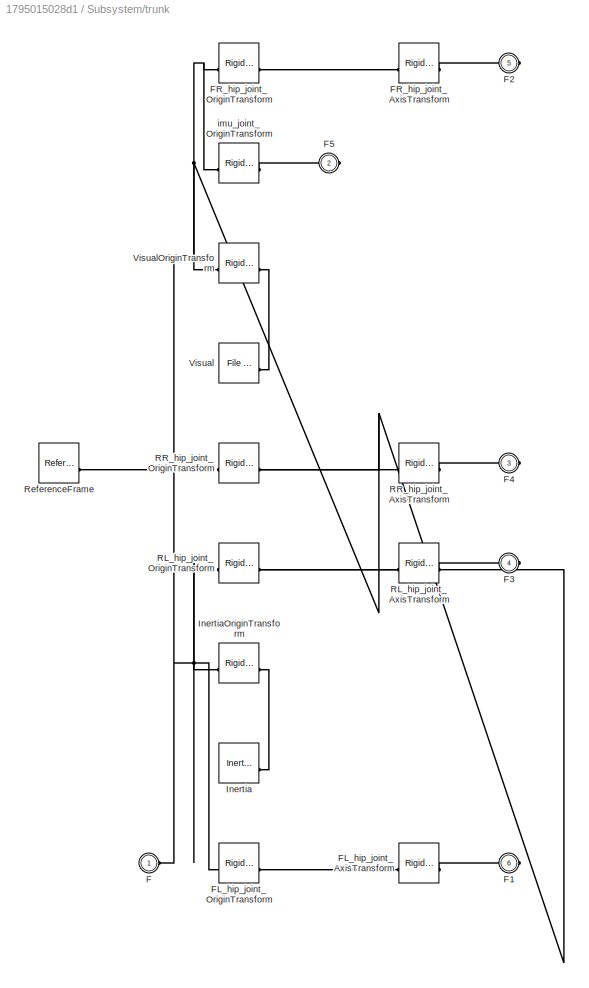
BLOCK [SubSystem] Subsystem/trunk
BLOCK [PMIOPort] Subsystem/trunk/F
  Side = Left
BLOCK [PMIOPort] Subsystem/trunk/F1
  Port = 6
  Side = Right
BLOCK [PMIOPort] Subsystem/trunk/F2
  Port = 5
  Side = Right
BLOCK [PMIOPort] Subsystem/trunk/F3
  Port = 4
  Side = Right
BLOCK [PMIOPort] Subsystem/trunk/F4
  Port = 3
  Side = Right
BLOCK [PMIOPort] Subsystem/trunk/F5
  Port = 2
  Side = Right
BLOCK [Reference] Subsystem/trunk/FL_hip_joint_AxisTransform  REF=sm_lib/Frames and
Transforms/Rigid
Transform
  SourceBlock = sm_lib/Frames and\nTransforms/Rigid\nTransform
  SourceType = Rigid\nTransform
BLOCK [Reference] Subsystem/trunk/FL_hip_joint_OriginTransform  REF=sm_lib/Frames and
Transforms/Rigid
Transform
  SourceBlock = sm_lib/Frames and\nTransforms/Rigid\nTransform
  SourceType = Rigid\nTransform
BLOCK [Reference] Subsystem/trunk/FR_hip_joint_AxisTransform  REF=sm_lib/Frames and
Transforms/Rigid
Transform
  SourceBlock = sm_lib/Frames and\nTransforms/Rigid\nTransform
  SourceType = Rigid\nTransform
BLOCK [Reference] Subsystem/trunk/FR_hip_joint_OriginTransform  REF=sm_lib/Frames and
Transforms/Rigid
Transform
  SourceBlock = sm_lib/Frames and\nTransforms/Rigid\nTransform
  SourceType = Rigid\nTransform
BLOCK [Reference] Subsystem/trunk/Inertia  REF=sm_lib/Body Elements/Inertia
  SourceBlock = sm_lib/Body Elements/Inertia
  SourceType = Inertia
BLOCK [Reference] Subsystem/trunk/InertiaOriginTransform  REF=sm_lib/Frames and
Transforms/Rigid
Transform
  SourceBlock = sm_lib/Frames and\nTransforms/Rigid\nTransform
  SourceType = Rigid\nTransform
BLOCK [Reference] Subsystem/trunk/RL_hip_joint_AxisTransform  REF=sm_lib/Frames and
Transforms/Rigid
Transform
  SourceBlock = sm_lib/Frames and\nTransforms/Rigid\nTransform
  SourceType = Rigid\nTransform
BLOCK [Reference] Subsystem/trunk/RL_hip_joint_OriginTransform  REF=sm_lib/Frames and
Transforms/Rigid
Transform
  SourceBlock = sm_lib/Frames and\nTransforms/Rigid\nTransform
  SourceType = Rigid\nTransform
BLOCK [Reference] Subsystem/trunk/RR_hip_joint_AxisTransform  REF=sm_lib/Frames and
Transforms/Rigid
Transform
  SourceBlock = sm_lib/Frames and\nTransforms/Rigid\nTransform
  SourceType = Rigid\nTransform
BLOCK [Reference] Subsystem/trunk/RR_hip_joint_OriginTransform  REF=sm_lib/Frames and
Transforms/Rigid
Transform
  SourceBlock = sm_lib/Frames and\nTransforms/Rigid\nTransform
  SourceType = Rigid\nTransform
BLOCK [Reference] Subsystem/trunk/ReferenceFrame  REF=sm_lib/Frames and
Transforms/Reference
Frame
  SourceBlock = sm_lib/Frames and\nTransforms/Reference\nFrame
  SourceType = Reference\nFrame
BLOCK [Reference] Subsystem/trunk/Visual  REF=sm_lib/Body Elements/File Solid
  SourceBlock = sm_lib/Body Elements/File Solid
  SourceType = File Solid
BLOCK [Reference] Subsystem/trunk/VisualOriginTransform  REF=sm_lib/Frames and
Transforms/Rigid
Transform
  SourceBlock = sm_lib/Frames and\nTransforms/Rigid\nTransform
  SourceType = Rigid\nTransform
BLOCK [Reference] Subsystem/trunk/imu_joint_OriginTransform  REF=sm_lib/Frames and
Transforms/Rigid
Transform
  SourceBlock = sm_lib/Frames and\nTransforms/Rigid\nTransform
  SourceType = Rigid\nTransform
BLOCK [ToWorkspace] To Workspace
  FixptAsFi = on
  MaxDataPoints = inf
  SampleTime = 0.01
  SaveFormat = Timeseries
  VariableName = FR_H
BLOCK [ToWorkspace] To Workspace1
  FixptAsFi = on
  MaxDataPoints = inf
  SampleTime = 0.01
  SaveFormat = Timeseries
  VariableName = FR_T
BLOCK [ToWorkspace] To Workspace2
  FixptAsFi = on
  MaxDataPoints = inf
  SampleTime = 0.01
  SaveFormat = Timeseries
  VariableName = FR_C
BLOCK [ToWorkspace] To Workspace3
  FixptAsFi = on
  MaxDataPoints = inf
  SampleTime = 0.01
  SaveFormat = Timeseries
  VariableName = FR_H_com
BLOCK [ToWorkspace] To Workspace4
  FixptAsFi = on
  MaxDataPoints = inf
  SampleTime = 0.01
  SaveFormat = Timeseries
  VariableName = FR_T_com
BLOCK [ToWorkspace] To Workspace5
  FixptAsFi = on
  MaxDataPoints = inf
  SampleTime = 0.01
  SaveFormat = Timeseries
  VariableName = FR_C_com
BLOCK [TransferFcn] Transfer Fcn1
  Denominator = [1 10]
  Numerator = [10]
BLOCK [TransferFcn] Transfer Fcn2
  Denominator = [1 10]
  Numerator = [10]
BLOCK [TransferFcn] Transfer Fcn3
  Denominator = [1 10]
  Numerator = [10]
BLOCK [TransferFcn] Transfer Fcn4
  Denominator = [1 10]
  Numerator = [10]
BLOCK [TransferFcn] Transfer Fcn5
  Denominator = [1 10]
  Numerator = [10]
BLOCK [TransferFcn] Transfer Fcn6
  Denominator = [1 10]
  Numerator = [10]
BLOCK [DiscreteTransferFcn] X Acceleration Filter5
  Denominator = [1 -0.9753]
  InputPortMap = u0
  Numerator = [-1*0.02469]
LINE Constant10:1 -> Subsystem:11
LINE Constant11:1 -> Subsystem:12
LINE Constant1:1 -> Subsystem:2
LINE Constant2:1 -> Subsystem:3
LINE Constant3:1 -> Subsystem:4
LINE Constant4:1 -> Subsystem:5
LINE Constant5:1 -> Subsystem:6
LINE Constant9:1 -> Subsystem:10
LINE Constant:1 -> Subsystem:1
LINE Mux1:1 -> To Workspace1:1
LINE Mux2:1 -> To Workspace2:1
LINE Mux:1 -> To Workspace:1
NET Sine Wave1:1 -> Scope1:2, Subsystem:8, To Workspace4:1
NET Sine Wave2:1 -> Scope1:3, Subsystem:9, To Workspace5:1
NET Sine Wave:1 -> Scope1:1, Subsystem:7, To Workspace3:1
LINE Subsystem/FL_C_T:1 -> Subsystem/Simulink-PS Converter9:1
LINE Subsystem/FL_H_Q:1 -> Subsystem/Simulink-PS Converter11:1
LINE Subsystem/FL_T_Q:1 -> Subsystem/Simulink-PS Converter10:1
LINE Subsystem/FR_C_Q:1 -> Subsystem/Simulink-PS Converter8:1
LINE Subsystem/FR_H_Q:1 -> Subsystem/Simulink-PS Converter6:1
LINE Subsystem/FR_T_Q:1 -> Subsystem/Simulink-PS Converter7:1
LINE Subsystem/PS-Simulink Converter10:1 -> Subsystem/FR_H_q:1
LINE Subsystem/PS-Simulink Converter11:1 -> Subsystem/FR_H_w:1
LINE Subsystem/PS-Simulink Converter12:1 -> Subsystem/FR_H_a:1
LINE Subsystem/PS-Simulink Converter13:1 -> Subsystem/FR_T_q:1
LINE Subsystem/PS-Simulink Converter14:1 -> Subsystem/FR_T_w:1
LINE Subsystem/PS-Simulink Converter15:1 -> Subsystem/FR_T_a:1
LINE Subsystem/PS-Simulink Converter16:1 -> Subsystem/FR_C_q:1
LINE Subsystem/PS-Simulink Converter17:1 -> Subsystem/FR_C_w:1
LINE Subsystem/PS-Simulink Converter18:1 -> Subsystem/FR_C_a:1
LINE Subsystem/PS-Simulink Converter19:1 -> Subsystem/FF_H_q:1
LINE Subsystem/PS-Simulink Converter1:1 -> Subsystem/RL_H_q:1
LINE Subsystem/PS-Simulink Converter20:1 -> Subsystem/FF_H_w:1
LINE Subsystem/PS-Simulink Converter21:1 -> Subsystem/FF_H_a:1
LINE Subsystem/PS-Simulink Converter22:1 -> Subsystem/FF_T_q:1
LINE Subsystem/PS-Simulink Converter23:1 -> Subsystem/FF_T_w:1
LINE Subsystem/PS-Simulink Converter24:1 -> Subsystem/RR_H_q:1
LINE Subsystem/PS-Simulink Converter25:1 -> Subsystem/RR_H_w:1
LINE Subsystem/PS-Simulink Converter26:1 -> Subsystem/RR_H_a:1
LINE Subsystem/PS-Simulink Converter27:1 -> Subsystem/RR_T_q:1
LINE Subsystem/PS-Simulink Converter28:1 -> Subsystem/RR_T_w:1
LINE Subsystem/PS-Simulink Converter29:1 -> Subsystem/RR_T_a:1
LINE Subsystem/PS-Simulink Converter2:1 -> Subsystem/RL_H_w:1
LINE Subsystem/PS-Simulink Converter30:1 -> Subsystem/RR_C_q:1
LINE Subsystem/PS-Simulink Converter31:1 -> Subsystem/RR_C_w:1
LINE Subsystem/PS-Simulink Converter32:1 -> Subsystem/FF_T_a:1
LINE Subsystem/PS-Simulink Converter33:1 -> Subsystem/FF_C_q:1
LINE Subsystem/PS-Simulink Converter34:1 -> Subsystem/FF_C_w:1
LINE Subsystem/PS-Simulink Converter35:1 -> Subsystem/FF_C_a:1
LINE Subsystem/PS-Simulink Converter3:1 -> Subsystem/RL_H_a:1
LINE Subsystem/PS-Simulink Converter4:1 -> Subsystem/RL_T_q:1
LINE Subsystem/PS-Simulink Converter5:1 -> Subsystem/RL_T_w:1
LINE Subsystem/PS-Simulink Converter6:1 -> Subsystem/RL_T_a:1
LINE Subsystem/PS-Simulink Converter7:1 -> Subsystem/RL_C_q:1
LINE Subsystem/PS-Simulink Converter8:1 -> Subsystem/RL_C_w:1
LINE Subsystem/PS-Simulink Converter9:1 -> Subsystem/RL_C_a:1
LINE Subsystem/PS-Simulink Converter:1 -> Subsystem/RR_C_a:1
LINE Subsystem/RL_C_Q:1 -> Subsystem/Simulink-PS Converter5:1
LINE Subsystem/RL_H_Q:1 -> Subsystem/Simulink-PS Converter3:1
LINE Subsystem/RL_T_Q:1 -> Subsystem/Simulink-PS Converter4:1
LINE Subsystem/RR_C_Q:1 -> Subsystem/Simulink-PS Converter2:1
LINE Subsystem/RR_H_Q:1 -> Subsystem/Simulink-PS Converter1:1
LINE Subsystem/RR_T_Q:1 -> Subsystem/Simulink-PS Converter12:1
NET Subsystem:19 -> Mux:1, Scope:1
NET Subsystem:20 -> Scope2:1, Transfer Fcn6:1
NET Subsystem:21 -> Scope3:1, Transfer Fcn1:1
NET Subsystem:22 -> Mux1:1, Scope7:1
NET Subsystem:23 -> Scope8:1, Transfer Fcn2:1
NET Subsystem:24 -> Scope9:1, Transfer Fcn3:1
NET Subsystem:25 -> Mux2:1, Scope4:1
NET Subsystem:26 -> Scope5:1, Transfer Fcn4:1
NET Subsystem:27 -> Scope6:1, Transfer Fcn5:1
NET Transfer Fcn1:1 -> Mux:3, Scope3:2
NET Transfer Fcn2:1 -> Mux1:2, Scope8:2
NET Transfer Fcn3:1 -> Mux1:3, Scope9:2
NET Transfer Fcn4:1 -> Mux2:2, Scope5:2
NET Transfer Fcn5:1 -> Mux2:3, Scope6:2
NET Transfer Fcn6:1 -> Mux:2, Scope2:2
PLINE Subsystem/FL_calf/F1:RConn1 -- Subsystem/FL_calf/FL_foot_fixed_OriginTransform:RConn1
PLINE Subsystem/FL_calf/F:RConn1 -- Subsystem/FL_calf/FL_calf_joint_AxisInvTransform:RConn1
PNET net1: Subsystem/FL_calf/FL_calf_joint_AxisInvTransform:LConn1 -- Subsystem/FL_calf/FL_foot_fixed_OriginTransform:LConn1 -- Subsystem/FL_calf/InertiaOriginTransform:LConn1 -- Subsystem/FL_calf/ReferenceFrame:RConn1 -- Subsystem/FL_calf/VisualOriginTransform:LConn1
PLINE Subsystem/FL_calf/Inertia:RConn1 -- Subsystem/FL_calf/InertiaOriginTransform:RConn1
PLINE Subsystem/FL_calf/Visual:RConn1 -- Subsystem/FL_calf/VisualOriginTransform:RConn1
PLINE Subsystem/FL_calf:LConn1 -- Subsystem/FL_calf_joint:RConn1
PLINE Subsystem/FL_calf:RConn1 -- Subsystem/FL_foot_fixed:LConn1
PLINE Subsystem/FL_calf_joint:LConn1 -- Subsystem/FL_thigh:RConn1
PLINE Subsystem/FL_calf_joint:LConn2 -- Subsystem/Simulink-PS Converter9:RConn1
PLINE Subsystem/FL_calf_joint:RConn2 -- Subsystem/PS-Simulink Converter33:LConn1
PLINE Subsystem/FL_calf_joint:RConn3 -- Subsystem/PS-Simulink Converter34:LConn1
PLINE Subsystem/FL_calf_joint:RConn4 -- Subsystem/PS-Simulink Converter35:LConn1
PNET net2: Subsystem/FL_foot/F:RConn1 -- Subsystem/FL_foot/InertiaOriginTransform:LConn1 -- Subsystem/FL_foot/ReferenceFrame:RConn1 -- Subsystem/FL_foot/VisualOriginTransform:LConn1
PLINE Subsystem/FL_foot/Inertia:RConn1 -- Subsystem/FL_foot/InertiaOriginTransform:RConn1
PLINE Subsystem/FL_foot/Visual:RConn1 -- Subsystem/FL_foot/VisualOriginTransform:RConn1
PLINE Subsystem/FL_foot:LConn1 -- Subsystem/FL_foot_fixed:RConn1
PLINE Subsystem/FL_hip/F1:RConn1 -- Subsystem/FL_hip/FL_hip_fixed_OriginTransform:RConn1
PLINE Subsystem/FL_hip/F2:RConn1 -- Subsystem/FL_hip/FL_thigh_joint_AxisTransform:RConn1
PLINE Subsystem/FL_hip/F:RConn1 -- Subsystem/FL_hip/FL_hip_joint_AxisInvTransform:RConn1
PNET net3: Subsystem/FL_hip/FL_hip_fixed_OriginTransform:LConn1 -- Subsystem/FL_hip/FL_hip_joint_AxisInvTransform:LConn1 -- Subsystem/FL_hip/FL_thigh_joint_OriginTransform:LConn1 -- Subsystem/FL_hip/InertiaOriginTransform:LConn1 -- Subsystem/FL_hip/ReferenceFrame:RConn1 -- Subsystem/FL_hip/VisualOriginTransform:LConn1
PLINE Subsystem/FL_hip/FL_thigh_joint_AxisTransform:LConn1 -- Subsystem/FL_hip/FL_thigh_joint_OriginTransform:RConn1
PLINE Subsystem/FL_hip/Inertia:RConn1 -- Subsystem/FL_hip/InertiaOriginTransform:RConn1
PLINE Subsystem/FL_hip/Visual:RConn1 -- Subsystem/FL_hip/VisualOriginTransform:RConn1
PLINE Subsystem/FL_hip:LConn1 -- Subsystem/FL_hip_joint:RConn1
PLINE Subsystem/FL_hip:RConn1 -- Subsystem/FL_thigh_joint:LConn1
PLINE Subsystem/FL_hip:RConn2 -- Subsystem/FL_hip_fixed:LConn1
PLINE Subsystem/FL_hip_fixed:RConn1 -- Subsystem/FL_thigh_shoulder:LConn1
PLINE Subsystem/FL_hip_joint:LConn1 -- Subsystem/trunk:RConn5
PLINE Subsystem/FL_hip_joint:LConn2 -- Subsystem/Simulink-PS Converter11:RConn1
PLINE Subsystem/FL_hip_joint:RConn2 -- Subsystem/PS-Simulink Converter19:LConn1
PLINE Subsystem/FL_hip_joint:RConn3 -- Subsystem/PS-Simulink Converter20:LConn1
PLINE Subsystem/FL_hip_joint:RConn4 -- Subsystem/PS-Simulink Converter21:LConn1
PLINE Subsystem/FL_thigh/F1:RConn1 -- Subsystem/FL_thigh/FL_calf_joint_AxisTransform:RConn1
PLINE Subsystem/FL_thigh/F:RConn1 -- Subsystem/FL_thigh/FL_thigh_joint_AxisInvTransform:RConn1
PLINE Subsystem/FL_thigh/FL_calf_joint_AxisTransform:LConn1 -- Subsystem/FL_thigh/FL_calf_joint_OriginTransform:RConn1
PNET net4: Subsystem/FL_thigh/FL_calf_joint_OriginTransform:LConn1 -- Subsystem/FL_thigh/FL_thigh_joint_AxisInvTransform:LConn1 -- Subsystem/FL_thigh/InertiaOriginTransform:LConn1 -- Subsystem/FL_thigh/ReferenceFrame:RConn1 -- Subsystem/FL_thigh/VisualOriginTransform:LConn1
PLINE Subsystem/FL_thigh/Inertia:RConn1 -- Subsystem/FL_thigh/InertiaOriginTransform:RConn1
PLINE Subsystem/FL_thigh/Visual:RConn1 -- Subsystem/FL_thigh/VisualOriginTransform:RConn1
PLINE Subsystem/FL_thigh:LConn1 -- Subsystem/FL_thigh_joint:RConn1
PLINE Subsystem/FL_thigh_joint:LConn2 -- Subsystem/Simulink-PS Converter10:RConn1
PLINE Subsystem/FL_thigh_joint:RConn2 -- Subsystem/PS-Simulink Converter22:LConn1
PLINE Subsystem/FL_thigh_joint:RConn3 -- Subsystem/PS-Simulink Converter23:LConn1
PLINE Subsystem/FL_thigh_joint:RConn4 -- Subsystem/PS-Simulink Converter32:LConn1
PLINE Subsystem/FL_thigh_shoulder/F:RConn1 -- Subsystem/FL_thigh_shoulder/ReferenceFrame:RConn1
PLINE Subsystem/FR_calf/F1:RConn1 -- Subsystem/FR_calf/FR_foot_fixed_OriginTransform:RConn1
PLINE Subsystem/FR_calf/F:RConn1 -- Subsystem/FR_calf/FR_calf_joint_AxisInvTransform:RConn1
PNET net5: Subsystem/FR_calf/FR_calf_joint_AxisInvTransform:LConn1 -- Subsystem/FR_calf/FR_foot_fixed_OriginTransform:LConn1 -- Subsystem/FR_calf/InertiaOriginTransform:LConn1 -- Subsystem/FR_calf/ReferenceFrame:RConn1 -- Subsystem/FR_calf/VisualOriginTransform:LConn1
PLINE Subsystem/FR_calf/Inertia:RConn1 -- Subsystem/FR_calf/InertiaOriginTransform:RConn1
PLINE Subsystem/FR_calf/Visual:RConn1 -- Subsystem/FR_calf/VisualOriginTransform:RConn1
PLINE Subsystem/FR_calf:LConn1 -- Subsystem/FR_calf_joint:RConn1
PLINE Subsystem/FR_calf:RConn1 -- Subsystem/FR_foot_fixed:LConn1
PLINE Subsystem/FR_calf_joint:LConn1 -- Subsystem/FR_thigh:RConn1
PLINE Subsystem/FR_calf_joint:LConn2 -- Subsystem/Simulink-PS Converter8:RConn1
PLINE Subsystem/FR_calf_joint:RConn2 -- Subsystem/PS-Simulink Converter16:LConn1
PLINE Subsystem/FR_calf_joint:RConn3 -- Subsystem/PS-Simulink Converter17:LConn1
PLINE Subsystem/FR_calf_joint:RConn4 -- Subsystem/PS-Simulink Converter18:LConn1
PNET net6: Subsystem/FR_foot/F:RConn1 -- Subsystem/FR_foot/InertiaOriginTransform:LConn1 -- Subsystem/FR_foot/ReferenceFrame:RConn1 -- Subsystem/FR_foot/VisualOriginTransform:LConn1
PLINE Subsystem/FR_foot/Inertia:RConn1 -- Subsystem/FR_foot/InertiaOriginTransform:RConn1
PLINE Subsystem/FR_foot/Visual:RConn1 -- Subsystem/FR_foot/VisualOriginTransform:RConn1
PLINE Subsystem/FR_foot:LConn1 -- Subsystem/FR_foot_fixed:RConn1
PLINE Subsystem/FR_hip/F1:RConn1 -- Subsystem/FR_hip/FR_hip_fixed_OriginTransform:RConn1
PLINE Subsystem/FR_hip/F2:RConn1 -- Subsystem/FR_hip/FR_thigh_joint_AxisTransform:RConn1
PLINE Subsystem/FR_hip/F:RConn1 -- Subsystem/FR_hip/FR_hip_joint_AxisInvTransform:RConn1
PNET net7: Subsystem/FR_hip/FR_hip_fixed_OriginTransform:LConn1 -- Subsystem/FR_hip/FR_hip_joint_AxisInvTransform:LConn1 -- Subsystem/FR_hip/FR_thigh_joint_OriginTransform:LConn1 -- Subsystem/FR_hip/InertiaOriginTransform:LConn1 -- Subsystem/FR_hip/ReferenceFrame:RConn1 -- Subsystem/FR_hip/VisualOriginTransform:LConn1
PLINE Subsystem/FR_hip/FR_thigh_joint_AxisTransform:LConn1 -- Subsystem/FR_hip/FR_thigh_joint_OriginTransform:RConn1
PLINE Subsystem/FR_hip/Inertia:RConn1 -- Subsystem/FR_hip/InertiaOriginTransform:RConn1
PLINE Subsystem/FR_hip/Visual:RConn1 -- Subsystem/FR_hip/VisualOriginTransform:RConn1
PLINE Subsystem/FR_hip:LConn1 -- Subsystem/FR_hip_joint:RConn1
PLINE Subsystem/FR_hip:RConn1 -- Subsystem/FR_thigh_joint:LConn1
PLINE Subsystem/FR_hip:RConn2 -- Subsystem/FR_hip_fixed:LConn1
PLINE Subsystem/FR_hip_fixed:RConn1 -- Subsystem/FR_thigh_shoulder:LConn1
PLINE Subsystem/FR_hip_joint:LConn1 -- Subsystem/trunk:RConn4
PLINE Subsystem/FR_hip_joint:LConn2 -- Subsystem/Simulink-PS Converter6:RConn1
PLINE Subsystem/FR_hip_joint:RConn2 -- Subsystem/PS-Simulink Converter10:LConn1
PLINE Subsystem/FR_hip_joint:RConn3 -- Subsystem/PS-Simulink Converter11:LConn1
PLINE Subsystem/FR_hip_joint:RConn4 -- Subsystem/PS-Simulink Converter12:LConn1
PLINE Subsystem/FR_thigh/F1:RConn1 -- Subsystem/FR_thigh/FR_calf_joint_AxisTransform:RConn1
PLINE Subsystem/FR_thigh/F:RConn1 -- Subsystem/FR_thigh/FR_thigh_joint_AxisInvTransform:RConn1
PLINE Subsystem/FR_thigh/FR_calf_joint_AxisTransform:LConn1 -- Subsystem/FR_thigh/FR_calf_joint_OriginTransform:RConn1
PNET net8: Subsystem/FR_thigh/FR_calf_joint_OriginTransform:LConn1 -- Subsystem/FR_thigh/FR_thigh_joint_AxisInvTransform:LConn1 -- Subsystem/FR_thigh/InertiaOriginTransform:LConn1 -- Subsystem/FR_thigh/ReferenceFrame:RConn1 -- Subsystem/FR_thigh/VisualOriginTransform:LConn1
PLINE Subsystem/FR_thigh/Inertia:RConn1 -- Subsystem/FR_thigh/InertiaOriginTransform:RConn1
PLINE Subsystem/FR_thigh/Visual:RConn1 -- Subsystem/FR_thigh/VisualOriginTransform:RConn1
PLINE Subsystem/FR_thigh:LConn1 -- Subsystem/FR_thigh_joint:RConn1
PLINE Subsystem/FR_thigh_joint:LConn2 -- Subsystem/Simulink-PS Converter7:RConn1
PLINE Subsystem/FR_thigh_joint:RConn2 -- Subsystem/PS-Simulink Converter13:LConn1
PLINE Subsystem/FR_thigh_joint:RConn3 -- Subsystem/PS-Simulink Converter14:LConn1
PLINE Subsystem/FR_thigh_joint:RConn4 -- Subsystem/PS-Simulink Converter15:LConn1
PLINE Subsystem/FR_thigh_shoulder/F:RConn1 -- Subsystem/FR_thigh_shoulder/ReferenceFrame:RConn1
PNET net9: Subsystem/MechanismConfiguration:RConn1 -- Subsystem/Solver Configuration:RConn1 -- Subsystem/World:RConn1 -- Subsystem/base:LConn1
PLINE Subsystem/PS-Simulink Converter1:LConn1 -- Subsystem/RL_hip_joint:RConn2
PLINE Subsystem/PS-Simulink Converter24:LConn1 -- Subsystem/RR_hip_joint:RConn2
PLINE Subsystem/PS-Simulink Converter25:LConn1 -- Subsystem/RR_hip_joint:RConn3
PLINE Subsystem/PS-Simulink Converter26:LConn1 -- Subsystem/RR_hip_joint:RConn4
PLINE Subsystem/PS-Simulink Converter27:LConn1 -- Subsystem/RR_thigh_joint:RConn2
PLINE Subsystem/PS-Simulink Converter28:LConn1 -- Subsystem/RR_thigh_joint:RConn3
PLINE Subsystem/PS-Simulink Converter29:LConn1 -- Subsystem/RR_thigh_joint:RConn4
PLINE Subsystem/PS-Simulink Converter2:LConn1 -- Subsystem/RL_hip_joint:RConn3
PLINE Subsystem/PS-Simulink Converter30:LConn1 -- Subsystem/RR_calf_joint:RConn2
PLINE Subsystem/PS-Simulink Converter31:LConn1 -- Subsystem/RR_calf_joint:RConn3
PLINE Subsystem/PS-Simulink Converter3:LConn1 -- Subsystem/RL_hip_joint:RConn4
PLINE Subsystem/PS-Simulink Converter4:LConn1 -- Subsystem/RL_thigh_joint:RConn2
PLINE Subsystem/PS-Simulink Converter5:LConn1 -- Subsystem/RL_thigh_joint:RConn3
PLINE Subsystem/PS-Simulink Converter6:LConn1 -- Subsystem/RL_thigh_joint:RConn4
PLINE Subsystem/PS-Simulink Converter7:LConn1 -- Subsystem/RL_calf_joint:RConn2
PLINE Subsystem/PS-Simulink Converter8:LConn1 -- Subsystem/RL_calf_joint:RConn3
PLINE Subsystem/PS-Simulink Converter9:LConn1 -- Subsystem/RL_calf_joint:RConn4
PLINE Subsystem/PS-Simulink Converter:LConn1 -- Subsystem/RR_calf_joint:RConn4
PLINE Subsystem/RL_calf/F1:RConn1 -- Subsystem/RL_calf/RL_foot_fixed_OriginTransform:RConn1
PLINE Subsystem/RL_calf/F:RConn1 -- Subsystem/RL_calf/RL_calf_joint_AxisInvTransform:RConn1
PLINE Subsystem/RL_calf/Inertia:RConn1 -- Subsystem/RL_calf/InertiaOriginTransform:RConn1
PNET net10: Subsystem/RL_calf/InertiaOriginTransform:LConn1 -- Subsystem/RL_calf/RL_calf_joint_AxisInvTransform:LConn1 -- Subsystem/RL_calf/RL_foot_fixed_OriginTransform:LConn1 -- Subsystem/RL_calf/ReferenceFrame:RConn1 -- Subsystem/RL_calf/VisualOriginTransform:LConn1
PLINE Subsystem/RL_calf/Visual:RConn1 -- Subsystem/RL_calf/VisualOriginTransform:RConn1
PLINE Subsystem/RL_calf:LConn1 -- Subsystem/RL_calf_joint:RConn1
PLINE Subsystem/RL_calf:RConn1 -- Subsystem/RL_foot_fixed:LConn1
PLINE Subsystem/RL_calf_joint:LConn1 -- Subsystem/RL_thigh:RConn1
PLINE Subsystem/RL_calf_joint:LConn2 -- Subsystem/Simulink-PS Converter5:RConn1
PNET net11: Subsystem/RL_foot/F:RConn1 -- Subsystem/RL_foot/InertiaOriginTransform:LConn1 -- Subsystem/RL_foot/ReferenceFrame:RConn1 -- Subsystem/RL_foot/VisualOriginTransform:LConn1
PLINE Subsystem/RL_foot/Inertia:RConn1 -- Subsystem/RL_foot/InertiaOriginTransform:RConn1
PLINE Subsystem/RL_foot/Visual:RConn1 -- Subsystem/RL_foot/VisualOriginTransform:RConn1
PLINE Subsystem/RL_foot:LConn1 -- Subsystem/RL_foot_fixed:RConn1
PLINE Subsystem/RL_hip/F1:RConn1 -- Subsystem/RL_hip/RL_hip_fixed_OriginTransform:RConn1
PLINE Subsystem/RL_hip/F2:RConn1 -- Subsystem/RL_hip/RL_thigh_joint_AxisTransform:RConn1
PLINE Subsystem/RL_hip/F:RConn1 -- Subsystem/RL_hip/RL_hip_joint_AxisInvTransform:RConn1
PLINE Subsystem/RL_hip/Inertia:RConn1 -- Subsystem/RL_hip/InertiaOriginTransform:RConn1
PNET net12: Subsystem/RL_hip/InertiaOriginTransform:LConn1 -- Subsystem/RL_hip/RL_hip_fixed_OriginTransform:LConn1 -- Subsystem/RL_hip/RL_hip_joint_AxisInvTransform:LConn1 -- Subsystem/RL_hip/RL_thigh_joint_OriginTransform:LConn1 -- Subsystem/RL_hip/ReferenceFrame:RConn1 -- Subsystem/RL_hip/VisualOriginTransform:LConn1
PLINE Subsystem/RL_hip/RL_thigh_joint_AxisTransform:LConn1 -- Subsystem/RL_hip/RL_thigh_joint_OriginTransform:RConn1
PLINE Subsystem/RL_hip/Visual:RConn1 -- Subsystem/RL_hip/VisualOriginTransform:RConn1
PLINE Subsystem/RL_hip:LConn1 -- Subsystem/RL_hip_joint:RConn1
PLINE Subsystem/RL_hip:RConn1 -- Subsystem/RL_thigh_joint:LConn1
PLINE Subsystem/RL_hip:RConn2 -- Subsystem/RL_hip_fixed:LConn1
PLINE Subsystem/RL_hip_fixed:RConn1 -- Subsystem/RL_thigh_shoulder:LConn1
PLINE Subsystem/RL_hip_joint:LConn1 -- Subsystem/trunk:RConn3
PLINE Subsystem/RL_hip_joint:LConn2 -- Subsystem/Simulink-PS Converter3:RConn1
PLINE Subsystem/RL_thigh/F1:RConn1 -- Subsystem/RL_thigh/RL_calf_joint_AxisTransform:RConn1
PLINE Subsystem/RL_thigh/F:RConn1 -- Subsystem/RL_thigh/RL_thigh_joint_AxisInvTransform:RConn1
PLINE Subsystem/RL_thigh/Inertia:RConn1 -- Subsystem/RL_thigh/InertiaOriginTransform:RConn1
PNET net13: Subsystem/RL_thigh/InertiaOriginTransform:LConn1 -- Subsystem/RL_thigh/RL_calf_joint_OriginTransform:LConn1 -- Subsystem/RL_thigh/RL_thigh_joint_AxisInvTransform:LConn1 -- Subsystem/RL_thigh/ReferenceFrame:RConn1 -- Subsystem/RL_thigh/VisualOriginTransform:LConn1
PLINE Subsystem/RL_thigh/RL_calf_joint_AxisTransform:LConn1 -- Subsystem/RL_thigh/RL_calf_joint_OriginTransform:RConn1
PLINE Subsystem/RL_thigh/Visual:RConn1 -- Subsystem/RL_thigh/VisualOriginTransform:RConn1
PLINE Subsystem/RL_thigh:LConn1 -- Subsystem/RL_thigh_joint:RConn1
PLINE Subsystem/RL_thigh_joint:LConn2 -- Subsystem/Simulink-PS Converter4:RConn1
PLINE Subsystem/RL_thigh_shoulder/F:RConn1 -- Subsystem/RL_thigh_shoulder/ReferenceFrame:RConn1
PLINE Subsystem/RR_calf/F1:RConn1 -- Subsystem/RR_calf/RR_foot_fixed_OriginTransform:RConn1
PLINE Subsystem/RR_calf/F:RConn1 -- Subsystem/RR_calf/RR_calf_joint_AxisInvTransform:RConn1
PLINE Subsystem/RR_calf/Inertia:RConn1 -- Subsystem/RR_calf/InertiaOriginTransform:RConn1
PNET net14: Subsystem/RR_calf/InertiaOriginTransform:LConn1 -- Subsystem/RR_calf/RR_calf_joint_AxisInvTransform:LConn1 -- Subsystem/RR_calf/RR_foot_fixed_OriginTransform:LConn1 -- Subsystem/RR_calf/ReferenceFrame:RConn1 -- Subsystem/RR_calf/VisualOriginTransform:LConn1
PLINE Subsystem/RR_calf/Visual:RConn1 -- Subsystem/RR_calf/VisualOriginTransform:RConn1
PLINE Subsystem/RR_calf:LConn1 -- Subsystem/RR_calf_joint:RConn1
PLINE Subsystem/RR_calf:RConn1 -- Subsystem/RR_foot_fixed:LConn1
PLINE Subsystem/RR_calf_joint:LConn1 -- Subsystem/RR_thigh:RConn1
PLINE Subsystem/RR_calf_joint:LConn2 -- Subsystem/Simulink-PS Converter2:RConn1
PNET net15: Subsystem/RR_foot/F:RConn1 -- Subsystem/RR_foot/InertiaOriginTransform:LConn1 -- Subsystem/RR_foot/ReferenceFrame:RConn1 -- Subsystem/RR_foot/VisualOriginTransform:LConn1
PLINE Subsystem/RR_foot/Inertia:RConn1 -- Subsystem/RR_foot/InertiaOriginTransform:RConn1
PLINE Subsystem/RR_foot/Visual:RConn1 -- Subsystem/RR_foot/VisualOriginTransform:RConn1
PLINE Subsystem/RR_foot:LConn1 -- Subsystem/RR_foot_fixed:RConn1
PLINE Subsystem/RR_hip/F1:RConn1 -- Subsystem/RR_hip/RR_hip_fixed_OriginTransform:RConn1
PLINE Subsystem/RR_hip/F2:RConn1 -- Subsystem/RR_hip/RR_thigh_joint_AxisTransform:RConn1
PLINE Subsystem/RR_hip/F:RConn1 -- Subsystem/RR_hip/RR_hip_joint_AxisInvTransform:RConn1
PLINE Subsystem/RR_hip/Inertia:RConn1 -- Subsystem/RR_hip/InertiaOriginTransform:RConn1
PNET net16: Subsystem/RR_hip/InertiaOriginTransform:LConn1 -- Subsystem/RR_hip/RR_hip_fixed_OriginTransform:LConn1 -- Subsystem/RR_hip/RR_hip_joint_AxisInvTransform:LConn1 -- Subsystem/RR_hip/RR_thigh_joint_OriginTransform:LConn1 -- Subsystem/RR_hip/ReferenceFrame:RConn1 -- Subsystem/RR_hip/VisualOriginTransform:LConn1
PLINE Subsystem/RR_hip/RR_thigh_joint_AxisTransform:LConn1 -- Subsystem/RR_hip/RR_thigh_joint_OriginTransform:RConn1
PLINE Subsystem/RR_hip/Visual:RConn1 -- Subsystem/RR_hip/VisualOriginTransform:RConn1
PLINE Subsystem/RR_hip:LConn1 -- Subsystem/RR_hip_joint:RConn1
PLINE Subsystem/RR_hip:RConn1 -- Subsystem/RR_thigh_joint:LConn1
PLINE Subsystem/RR_hip:RConn2 -- Subsystem/RR_hip_fixed:LConn1
PLINE Subsystem/RR_hip_fixed:RConn1 -- Subsystem/RR_thigh_shoulder:LConn1
PLINE Subsystem/RR_hip_joint:LConn1 -- Subsystem/trunk:RConn2
PLINE Subsystem/RR_hip_joint:LConn2 -- Subsystem/Simulink-PS Converter1:RConn1
PLINE Subsystem/RR_thigh/F1:RConn1 -- Subsystem/RR_thigh/RR_calf_joint_AxisTransform:RConn1
PLINE Subsystem/RR_thigh/F:RConn1 -- Subsystem/RR_thigh/RR_thigh_joint_AxisInvTransform:RConn1
PLINE Subsystem/RR_thigh/Inertia:RConn1 -- Subsystem/RR_thigh/InertiaOriginTransform:RConn1
PNET net17: Subsystem/RR_thigh/InertiaOriginTransform:LConn1 -- Subsystem/RR_thigh/RR_calf_joint_OriginTransform:LConn1 -- Subsystem/RR_thigh/RR_thigh_joint_AxisInvTransform:LConn1 -- Subsystem/RR_thigh/ReferenceFrame:RConn1 -- Subsystem/RR_thigh/VisualOriginTransform:LConn1
PLINE Subsystem/RR_thigh/RR_calf_joint_AxisTransform:LConn1 -- Subsystem/RR_thigh/RR_calf_joint_OriginTransform:RConn1
PLINE Subsystem/RR_thigh/Visual:RConn1 -- Subsystem/RR_thigh/VisualOriginTransform:RConn1
PLINE Subsystem/RR_thigh:LConn1 -- Subsystem/RR_thigh_joint:RConn1
PLINE Subsystem/RR_thigh_joint:LConn2 -- Subsystem/Simulink-PS Converter12:RConn1
PLINE Subsystem/RR_thigh_shoulder/F:RConn1 -- Subsystem/RR_thigh_shoulder/ReferenceFrame:RConn1
PLINE Subsystem/base/F1:RConn1 -- Subsystem/base/floating_base_OriginTransform:RConn1
PNET net18: Subsystem/base/F:RConn1 -- Subsystem/base/ReferenceFrame:RConn1 -- Subsystem/base/VisualOriginTransform:LConn1 -- Subsystem/base/floating_base_OriginTransform:LConn1
PLINE Subsystem/base/Visual:RConn1 -- Subsystem/base/VisualOriginTransform:RConn1
PLINE Subsystem/base:RConn1 -- Subsystem/floating_base:LConn1
PLINE Subsystem/floating_base:RConn1 -- Subsystem/trunk:LConn1
PLINE Subsystem/imu_joint:LConn1 -- Subsystem/trunk:RConn1
PLINE Subsystem/imu_joint:RConn1 -- Subsystem/imu_link:LConn1
PNET net19: Subsystem/imu_link/F:RConn1 -- Subsystem/imu_link/InertiaOriginTransform:LConn1 -- Subsystem/imu_link/ReferenceFrame:RConn1 -- Subsystem/imu_link/VisualOriginTransform:LConn1
PLINE Subsystem/imu_link/Inertia:RConn1 -- Subsystem/imu_link/InertiaOriginTransform:RConn1
PLINE Subsystem/imu_link/Visual:RConn1 -- Subsystem/imu_link/VisualOriginTransform:RConn1
PLINE Subsystem/trunk/F1:RConn1 -- Subsystem/trunk/FL_hip_joint_AxisTransform:RConn1
PLINE Subsystem/trunk/F2:RConn1 -- Subsystem/trunk/FR_hip_joint_AxisTransform:RConn1
PLINE Subsystem/trunk/F3:RConn1 -- Subsystem/trunk/RL_hip_joint_AxisTransform:RConn1
PLINE Subsystem/trunk/F4:RConn1 -- Subsystem/trunk/RR_hip_joint_AxisTransform:RConn1
PLINE Subsystem/trunk/F5:RConn1 -- Subsystem/trunk/imu_joint_OriginTransform:RConn1
PNET net20: Subsystem/trunk/F:RConn1 -- Subsystem/trunk/FL_hip_joint_OriginTransform:LConn1 -- Subsystem/trunk/FR_hip_joint_OriginTransform:LConn1 -- Subsystem/trunk/InertiaOriginTransform:LConn1 -- Subsystem/trunk/RL_hip_joint_OriginTransform:LConn1 -- Subsystem/trunk/RR_hip_joint_OriginTransform:LConn1 -- Subsystem/trunk/ReferenceFrame:RConn1 -- Subsystem/trunk/VisualOriginTransform:LConn1 -- Subsystem/trunk/imu_joint_OriginTransform:LConn1
PLINE Subsystem/trunk/FL_hip_joint_AxisTransform:LConn1 -- Subsystem/trunk/FL_hip_joint_OriginTransform:RConn1
PLINE Subsystem/trunk/FR_hip_joint_AxisTransform:LConn1 -- Subsystem/trunk/FR_hip_joint_OriginTransform:RConn1
PLINE Subsystem/trunk/Inertia:RConn1 -- Subsystem/trunk/InertiaOriginTransform:RConn1
PLINE Subsystem/trunk/RL_hip_joint_AxisTransform:LConn1 -- Subsystem/trunk/RL_hip_joint_OriginTransform:RConn1
PLINE Subsystem/trunk/RR_hip_joint_AxisTransform:LConn1 -- Subsystem/trunk/RR_hip_joint_OriginTransform:RConn1
PLINE Subsystem/trunk/Visual:RConn1 -- Subsystem/trunk/VisualOriginTransform:RConn1
note: NET lines group one-source signal fan-out (src -> all destinations, sorted); 1:1 wires keep LINE; PNET lines group multi-terminal physical nets as a canonical sorted terminal list (undirected conserving connections); 2-terminal nets keep the pairwise PLINE form
